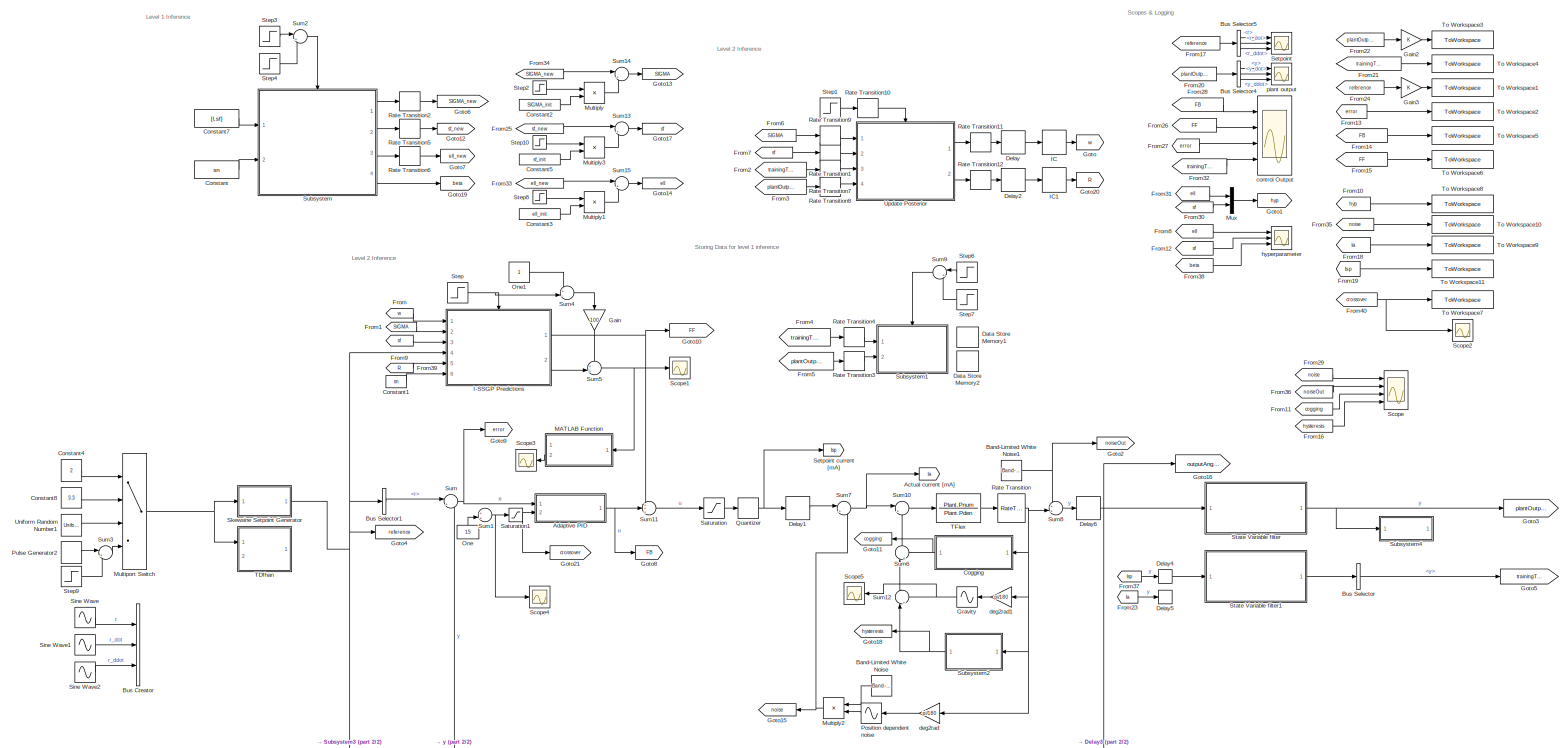
[diagram: root canvas - part 1/2, most of the canvas]
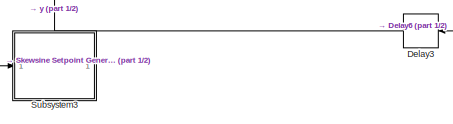
[diagram: root canvas - part 2/2, bottom center region]
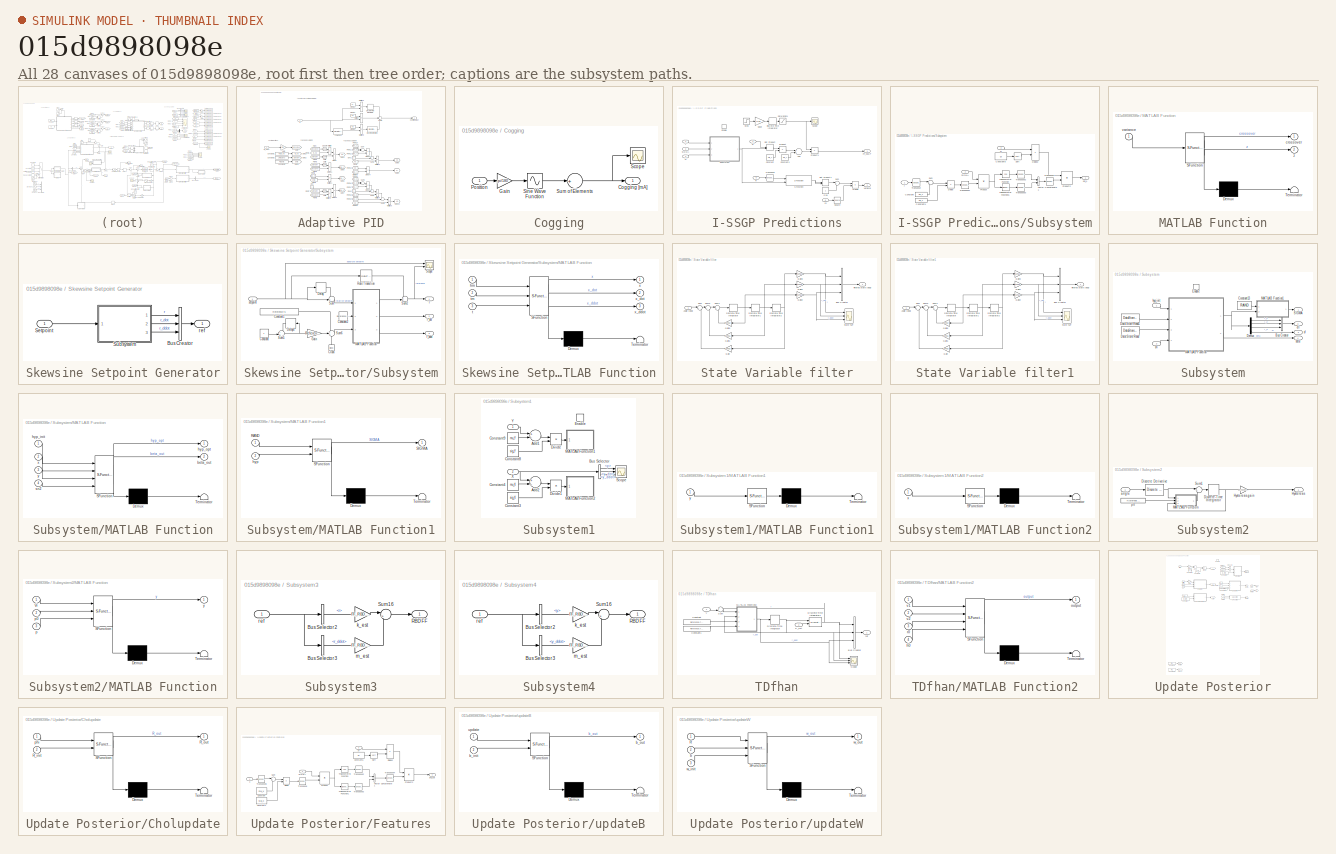
[diagram: thumbnail index - all 28 canvases of the model, root first then tree order]
MODEL slx_015d9898098e
KIND model
CONFIG AbsTol = auto
CONFIG EnableMultiTasking = off
CONFIG FixedStep = auto
CONFIG MaxStep = auto
CONFIG MinStep = auto
CONFIG RelTol = 1e-3
CONFIG SampleTimeConstraint = Unconstrained
CONFIG Solver = VariableStepAuto
CONFIG SolverName = VariableStepAuto
CONFIG StartTime = 0.0
CONFIG StopTime = t_end
BLOCK [Goto] Actual current [mA]
  GotoTag = Ia
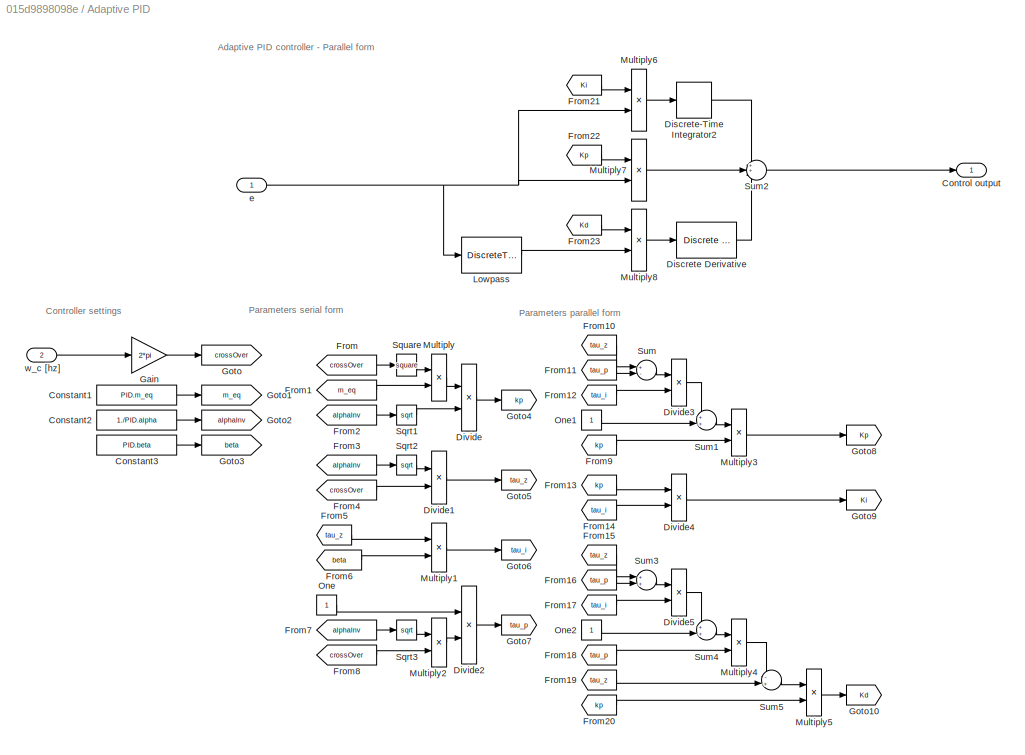
BLOCK [SubSystem] Adaptive PID
  Ports = [2, 1]
  RequestExecContextInheritance = off
BLOCK [Constant] Adaptive PID/Constant1
  Value = PID.m_eq
BLOCK [Constant] Adaptive PID/Constant2
  Value = 1./PID.alpha
BLOCK [Constant] Adaptive PID/Constant3
  Value = PID.beta
BLOCK [Outport] Adaptive PID/Control output
  IconDisplay = Port number
BLOCK [Reference] Adaptive PID/Discrete Derivative  REF=simulink/Discrete/Discrete Derivative
  Ports = [1, 1]
  SourceBlock = simulink/Discrete/Discrete Derivative
  SourceProductBaseCode = SL
  SourceProductName = Simulink
  SourceType = Discrete Derivative
BLOCK [DiscreteIntegrator] Adaptive PID/Discrete-Time Integrator2
  ICPrevOutput = DiscIntNeverNeededParam
  ICPrevScaledInput = DiscIntNeverNeededParam
  InitialConditionSetting = Auto
  Ports = [1, 1]
  SampleTime = -1
BLOCK [Product] Adaptive PID/Divide
  InputSameDT = off
  Inputs = */
  OutDataTypeStr = Inherit: Inherit via internal rule
  Ports = [2, 1]
  RndMeth = Floor
  SaturateOnIntegerOverflow = off
BLOCK [Product] Adaptive PID/Divide1
  InputSameDT = off
  Inputs = */
  OutDataTypeStr = Inherit: Inherit via internal rule
  Ports = [2, 1]
  RndMeth = Floor
  SaturateOnIntegerOverflow = off
BLOCK [Product] Adaptive PID/Divide2
  InputSameDT = off
  Inputs = */
  OutDataTypeStr = Inherit: Inherit via internal rule
  Ports = [2, 1]
  RndMeth = Floor
  SaturateOnIntegerOverflow = off
BLOCK [Product] Adaptive PID/Divide3
  InputSameDT = off
  Inputs = */
  OutDataTypeStr = Inherit: Inherit via internal rule
  Ports = [2, 1]
  RndMeth = Floor
  SaturateOnIntegerOverflow = off
BLOCK [Product] Adaptive PID/Divide4
  InputSameDT = off
  Inputs = */
  OutDataTypeStr = Inherit: Inherit via internal rule
  Ports = [2, 1]
  RndMeth = Floor
  SaturateOnIntegerOverflow = off
BLOCK [Product] Adaptive PID/Divide5
  InputSameDT = off
  Inputs = */
  OutDataTypeStr = Inherit: Inherit via internal rule
  Ports = [2, 1]
  RndMeth = Floor
  SaturateOnIntegerOverflow = off
BLOCK [From] Adaptive PID/From
  GotoTag = crossOver
BLOCK [From] Adaptive PID/From1
  GotoTag = m_eq
BLOCK [From] Adaptive PID/From10
  GotoTag = tau_z
BLOCK [From] Adaptive PID/From11
  GotoTag = tau_p
BLOCK [From] Adaptive PID/From12
  GotoTag = tau_i
BLOCK [From] Adaptive PID/From13
  GotoTag = kp
BLOCK [From] Adaptive PID/From14
  GotoTag = tau_i
BLOCK [From] Adaptive PID/From15
  GotoTag = tau_z
BLOCK [From] Adaptive PID/From16
  GotoTag = tau_p
BLOCK [From] Adaptive PID/From17
  GotoTag = tau_i
BLOCK [From] Adaptive PID/From18
  GotoTag = tau_p
BLOCK [From] Adaptive PID/From19
  GotoTag = tau_z
BLOCK [From] Adaptive PID/From2
  GotoTag = alphaInv
BLOCK [From] Adaptive PID/From20
  GotoTag = kp
BLOCK [From] Adaptive PID/From21
  GotoTag = Ki
BLOCK [From] Adaptive PID/From22
  GotoTag = Kp
BLOCK [From] Adaptive PID/From23
  GotoTag = Kd
BLOCK [From] Adaptive PID/From3
  GotoTag = alphaInv
BLOCK [From] Adaptive PID/From4
  GotoTag = crossOver
BLOCK [From] Adaptive PID/From5
  GotoTag = tau_z
BLOCK [From] Adaptive PID/From6
  GotoTag = beta
BLOCK [From] Adaptive PID/From7
  GotoTag = alphaInv
BLOCK [From] Adaptive PID/From8
  GotoTag = crossOver
BLOCK [From] Adaptive PID/From9
  GotoTag = kp
BLOCK [Gain] Adaptive PID/Gain
  Gain = 2*pi
  OutDataTypeStr = Inherit: Inherit via internal rule
  ParamDataTypeStr = Inherit: Inherit via internal rule
  SaturateOnIntegerOverflow = off
BLOCK [Goto] Adaptive PID/Goto
  GotoTag = crossOver
BLOCK [Goto] Adaptive PID/Goto1
  GotoTag = m_eq
BLOCK [Goto] Adaptive PID/Goto10
  GotoTag = Kd
BLOCK [Goto] Adaptive PID/Goto2
  GotoTag = alphaInv
BLOCK [Goto] Adaptive PID/Goto3
  GotoTag = beta
BLOCK [Goto] Adaptive PID/Goto4
  GotoTag = kp
BLOCK [Goto] Adaptive PID/Goto5
  GotoTag = tau_z
BLOCK [Goto] Adaptive PID/Goto6
  GotoTag = tau_i
BLOCK [Goto] Adaptive PID/Goto7
  GotoTag = tau_p
BLOCK [Goto] Adaptive PID/Goto8
  GotoTag = Kp
BLOCK [Goto] Adaptive PID/Goto9
  GotoTag = Ki
BLOCK [DiscreteTransferFcn] Adaptive PID/Lowpass
  Denominator = PID.LPden
  InputPortMap = u0
  Numerator = PID.LPnum
  Ports = [1, 1]
  SampleTime = ts
BLOCK [Product] Adaptive PID/Multiply
  InputSameDT = off
  OutDataTypeStr = Inherit: Inherit via internal rule
  Ports = [2, 1]
  RndMeth = Floor
  SaturateOnIntegerOverflow = off
BLOCK [Product] Adaptive PID/Multiply1
  InputSameDT = off
  OutDataTypeStr = Inherit: Inherit via internal rule
  Ports = [2, 1]
  RndMeth = Floor
  SaturateOnIntegerOverflow = off
BLOCK [Product] Adaptive PID/Multiply2
  InputSameDT = off
  OutDataTypeStr = Inherit: Inherit via internal rule
  Ports = [2, 1]
  RndMeth = Floor
  SaturateOnIntegerOverflow = off
BLOCK [Product] Adaptive PID/Multiply3
  InputSameDT = off
  OutDataTypeStr = Inherit: Inherit via internal rule
  Ports = [2, 1]
  RndMeth = Floor
  SaturateOnIntegerOverflow = off
BLOCK [Product] Adaptive PID/Multiply4
  InputSameDT = off
  OutDataTypeStr = Inherit: Inherit via internal rule
  Ports = [2, 1]
  RndMeth = Floor
  SaturateOnIntegerOverflow = off
BLOCK [Product] Adaptive PID/Multiply5
  InputSameDT = off
  OutDataTypeStr = Inherit: Inherit via internal rule
  Ports = [2, 1]
  RndMeth = Floor
  SaturateOnIntegerOverflow = off
BLOCK [Product] Adaptive PID/Multiply6
  InputSameDT = off
  OutDataTypeStr = Inherit: Inherit via internal rule
  Ports = [2, 1]
  RndMeth = Floor
  SaturateOnIntegerOverflow = off
BLOCK [Product] Adaptive PID/Multiply7
  InputSameDT = off
  OutDataTypeStr = Inherit: Inherit via internal rule
  Ports = [2, 1]
  RndMeth = Floor
  SaturateOnIntegerOverflow = off
BLOCK [Product] Adaptive PID/Multiply8
  InputSameDT = off
  OutDataTypeStr = Inherit: Inherit via internal rule
  Ports = [2, 1]
  RndMeth = Floor
  SaturateOnIntegerOverflow = off
BLOCK [Constant] Adaptive PID/One
  OutDataTypeStr = Inherit: Inherit via back propagation
BLOCK [Constant] Adaptive PID/One1
  OutDataTypeStr = Inherit: Inherit via back propagation
BLOCK [Constant] Adaptive PID/One2
  OutDataTypeStr = Inherit: Inherit via back propagation
BLOCK [Sqrt] Adaptive PID/Sqrt1
BLOCK [Sqrt] Adaptive PID/Sqrt2
BLOCK [Sqrt] Adaptive PID/Sqrt3
BLOCK [Math] Adaptive PID/Square
  Operator = square
  Ports = [1, 1]
BLOCK [Sum] Adaptive PID/Sum
  IconShape = round
  InputSameDT = off
  Inputs = +-|
  OutDataTypeStr = Inherit: Inherit via internal rule
  Ports = [2, 1]
  SaturateOnIntegerOverflow = off
BLOCK [Sum] Adaptive PID/Sum1
  IconShape = round
  InputSameDT = off
  Inputs = ++|
  OutDataTypeStr = Inherit: Inherit via internal rule
  Ports = [2, 1]
  SaturateOnIntegerOverflow = off
BLOCK [Sum] Adaptive PID/Sum2
  IconShape = round
  InputSameDT = off
  Inputs = 3
  OutDataTypeStr = Inherit: Inherit via internal rule
  Ports = [3, 1]
  SaturateOnIntegerOverflow = off
BLOCK [Sum] Adaptive PID/Sum3
  IconShape = round
  InputSameDT = off
  Inputs = ++|
  OutDataTypeStr = Inherit: Inherit via internal rule
  Ports = [2, 1]
  SaturateOnIntegerOverflow = off
BLOCK [Sum] Adaptive PID/Sum4
  IconShape = round
  InputSameDT = off
  Inputs = ++|
  OutDataTypeStr = Inherit: Inherit via internal rule
  Ports = [2, 1]
  SaturateOnIntegerOverflow = off
BLOCK [Sum] Adaptive PID/Sum5
  IconShape = round
  InputSameDT = off
  Inputs = -+|
  OutDataTypeStr = Inherit: Inherit via internal rule
  Ports = [2, 1]
  SaturateOnIntegerOverflow = off
BLOCK [Inport] Adaptive PID/e
  IconDisplay = Port number
BLOCK [Inport] Adaptive PID/w_c [hz]
  IconDisplay = Port number
  Port = 2
BLOCK [Reference] Band-Limited White Noise  REF=simulink/Sources/Band-Limited
White Noise
  Ports = [0, 1]
  SourceBlock = simulink/Sources/Band-Limited\nWhite Noise
  SourceProductBaseCode = SL
  SourceProductName = Simulink
  SourceType = Band-Limited White Noise.
BLOCK [Reference] Band-Limited White Noise1  REF=simulink/Sources/Band-Limited
White Noise
  Ports = [0, 1]
  SourceBlock = simulink/Sources/Band-Limited\nWhite Noise
  SourceProductBaseCode = SL
  SourceProductName = Simulink
  SourceType = Band-Limited White Noise.
BLOCK [BusCreator] Bus Creator
  DisplayOption = bar
  InheritFromInputs = on
  Inputs = 3
  Ports = [3, 1]
BLOCK [BusSelector] Bus Selector
  OutputAsBus = off
  OutputSignals = y
  Ports = [1, 1]
BLOCK [BusSelector] Bus Selector1
  OutputAsBus = off
  OutputSignals = r
  Ports = [1, 1]
BLOCK [BusSelector] Bus Selector4
  OutputAsBus = off
  OutputSignals = y,y_dot,y_ddot
  Ports = [1, 3]
BLOCK [BusSelector] Bus Selector5
  OutputAsBus = off
  OutputSignals = r,r_dot,r_ddot
  Ports = [1, 3]
BLOCK [SubSystem] Cogging
  Ports = [1, 1]
  RequestExecContextInheritance = off
BLOCK [Outport] Cogging/Cogging [mA]
  IconDisplay = Port number
BLOCK [Gain] Cogging/Gain
  Gain = pi/180
  OutDataTypeStr = Inherit: Inherit via internal rule
  ParamDataTypeStr = Inherit: Inherit via internal rule
  SaturateOnIntegerOverflow = off
BLOCK [Inport] Cogging/Position
  IconDisplay = Port number
BLOCK [Scope] Cogging/Scope
  Floating = off
  NumInputPorts = 1
  Ports = [1]
  ScopeSpecificationString = Simulink.scopes.TimeScopeBlockCfg('CurrentConfiguration', extmgr.ConfigurationSet(extmgr.Configuration('Core','General UI',true),extmgr.Configuration('Core','Source UI',true),extmgr.Configuration('Sources','WiredSimulink',true,'DataLoggingVariableName','ScopeData2'),extmgr.Configuration('Visuals','Time Domain',true,'SerializedDisplays',{struct('MinYLimReal','-29.47547','MaxYLimReal','29.47547','YL...<+1399ch>
BLOCK [Sin] Cogging/Sine Wave Function
  Amplitude = Cogging.amplitude
  Frequency = Cogging.frequency*pi
  Phase = Cogging.phase
  Ports = [1, 1]
  SampleTime = 0
  TimeSource = Use external signal
BLOCK [Sum] Cogging/Sum of Elements
  InputSameDT = off
  Inputs = +
  OutDataTypeStr = Inherit: Inherit via internal rule
  Ports = [1, 1]
  SaturateOnIntegerOverflow = off
BLOCK [Constant] Constant
  SampleTime = ts_opti
  Value = sn
BLOCK [Constant] Constant1
  SampleTime = ts_opti
  Value = sn
BLOCK [Constant] Constant2
  SampleTime = ts_opti
  Value = SIGMA_init
BLOCK [Constant] Constant3
  SampleTime = ts_opti
  Value = ell_init
BLOCK [Constant] Constant4
  SampleTime = Reference.ts
  Value = 2
BLOCK [Constant] Constant5
  SampleTime = ts_opti
  Value = sf_init
BLOCK [Constant] Constant7
  SampleTime = ts_opti
  Value = [l,sf]
  VectorParams1D = off
BLOCK [Constant] Constant8
  SampleTime = Reference.ts
  Value = 3.3
BLOCK [DataStoreMemory] Data Store Memory1
  DataStoreName = Y
  InitialValue = zeros(bufferSize,1)
  LockScale = on
  OutDataTypeStr = double
  ReadBeforeWriteMsg = warning
  ShowAdditionalParam = off
  SignalType = real
  VectorParams1D = off
  WriteAfterReadMsg = warning
  WriteAfterWriteMsg = warning
BLOCK [DataStoreMemory] Data Store Memory2
  DataStoreName = X
  InitialValue = zeros(bufferSize,3)
  LockScale = on
  OutDataTypeStr = double
  ReadBeforeWriteMsg = warning
  ShowAdditionalParam = off
  SignalType = real
  VectorParams1D = off
  WriteAfterReadMsg = warning
  WriteAfterWriteMsg = warning
BLOCK [Delay] Delay
  DelayLength = 1
  InitialCondition = 0
  InputPortMap = u0
  Ports = [1, 1]
BLOCK [Delay] Delay1
  DelayLength = 1
  InitialCondition = 0
  InputPortMap = u0
  Ports = [1, 1]
BLOCK [Delay] Delay2
  DelayLength = 1
  InitialCondition = 0
  InputPortMap = u0
  Ports = [1, 1]
BLOCK [Delay] Delay3
  DelayLength = 1
  InitialCondition = 0
  InputPortMap = u0
  Ports = [1, 1]
BLOCK [Delay] Delay4
  InputPortMap = u0
  Ports = [1, 1]
BLOCK [Delay] Delay5
  DelayLength = 1
  InputPortMap = u0
  Ports = [1, 1]
BLOCK [Delay] Delay6
  DelayLength = 1
  InitialCondition = 0
  InputPortMap = u0
  Ports = [1, 1]
BLOCK [From] From
  GotoTag = w
BLOCK [From] From1
  GotoTag = SIGMA
BLOCK [From] From10
  GotoTag = hyp
BLOCK [From] From11
  GotoTag = cogging
BLOCK [From] From12
  GotoTag = sf
BLOCK [From] From13
  GotoTag = error
BLOCK [From] From14
  GotoTag = FB
BLOCK [From] From15
  GotoTag = FF
BLOCK [From] From16
  GotoTag = hysteresis
BLOCK [From] From17
  GotoTag = reference
BLOCK [From] From18
  GotoTag = Ia
BLOCK [From] From19
  GotoTag = Isp
BLOCK [From] From2
  GotoTag = trainingTarget
BLOCK [From] From20
  GotoTag = plantOutput
BLOCK [From] From21
  GotoTag = trainingTarget
BLOCK [From] From22
  GotoTag = plantOutput
BLOCK [From] From23
  GotoTag = Ia
BLOCK [From] From24
  GotoTag = reference
BLOCK [From] From25
  GotoTag = sf_new
BLOCK [From] From26
  GotoTag = FF
BLOCK [From] From27
  GotoTag = error
BLOCK [From] From28
  GotoTag = FB
BLOCK [From] From29
  GotoTag = noise
BLOCK [From] From3
  GotoTag = plantOutput
BLOCK [From] From30
  GotoTag = sf
BLOCK [From] From31
  GotoTag = ell
BLOCK [From] From32
  GotoTag = trainingTarget
BLOCK [From] From33
  GotoTag = ell_new
BLOCK [From] From34
  GotoTag = SIGMA_new
BLOCK [From] From35
  GotoTag = noise
BLOCK [From] From36
  GotoTag = noiseOut
BLOCK [From] From37
  GotoTag = Isp
BLOCK [From] From38
  GotoTag = beta
BLOCK [From] From39
  GotoTag = R
BLOCK [From] From4
  GotoTag = trainingTarget
BLOCK [From] From40
  GotoTag = crossover
BLOCK [From] From5
  GotoTag = plantOutput
BLOCK [From] From6
  GotoTag = SIGMA
BLOCK [From] From7
  GotoTag = sf
BLOCK [From] From8
  GotoTag = ell
BLOCK [From] From9
  GotoTag = sf
BLOCK [Gain] Gain
  Gain = 100
  OutDataTypeStr = Inherit: Inherit via internal rule
  ParamDataTypeStr = Inherit: Inherit via internal rule
  SaturateOnIntegerOverflow = off
BLOCK [Gain] Gain2
  OutDataTypeStr = Inherit: Inherit via internal rule
  ParamDataTypeStr = Inherit: Inherit via internal rule
  SaturateOnIntegerOverflow = off
BLOCK [Gain] Gain3
  OutDataTypeStr = Inherit: Inherit via internal rule
  ParamDataTypeStr = Inherit: Inherit via internal rule
  SaturateOnIntegerOverflow = off
BLOCK [Goto] Goto
  GotoTag = w
BLOCK [Goto] Goto1
  GotoTag = hyp
BLOCK [Goto] Goto10
  GotoTag = FF
BLOCK [Goto] Goto11
  GotoTag = cogging
BLOCK [Goto] Goto12
  GotoTag = sf_new
BLOCK [Goto] Goto13
  GotoTag = SIGMA
BLOCK [Goto] Goto14
  GotoTag = ell
BLOCK [Goto] Goto15
  GotoTag = noise
BLOCK [Goto] Goto16
  GotoTag = outputAngle
BLOCK [Goto] Goto17
  GotoTag = sf
BLOCK [Goto] Goto18
  GotoTag = hysteresis
BLOCK [Goto] Goto19
  GotoTag = beta
BLOCK [Goto] Goto2
  GotoTag = noiseOut
BLOCK [Goto] Goto20
  GotoTag = R
BLOCK [Goto] Goto21
  GotoTag = crossover
BLOCK [Goto] Goto3
  GotoTag = plantOutput
BLOCK [Goto] Goto4
  GotoTag = reference
BLOCK [Goto] Goto5
  GotoTag = trainingTarget
BLOCK [Goto] Goto6
  GotoTag = SIGMA_new
BLOCK [Goto] Goto7
  GotoTag = ell_new
BLOCK [Goto] Goto8
  GotoTag = FB
BLOCK [Goto] Goto9
  GotoTag = error
BLOCK [Sin] Gravity
  Amplitude = gravity.constant
  Phase = gravity.phase
  Ports = [1, 1]
  SampleTime = 0
  TimeSource = Use external signal
BLOCK [SubSystem] I-SSGP Predictions
  Ports = [6, 2, 1]
  RequestExecContextInheritance = off
BLOCK [Sum] I-SSGP Predictions/Add
  InputSameDT = off
  OutDataTypeStr = Inherit: Inherit via internal rule
  Ports = [2, 1]
  SaturateOnIntegerOverflow = off
BLOCK [Constant] I-SSGP Predictions/Constant
  SampleTime = ts
  Value = sig_Y
  VectorParams1D = off
BLOCK [Constant] I-SSGP Predictions/Constant1
  SampleTime = ts
  Value = mu_Y
  VectorParams1D = off
BLOCK [DiscreteIntegrator] I-SSGP Predictions/Discrete-Time Integrator
  ICPrevOutput = DiscIntNeverNeededParam
  ICPrevScaledInput = DiscIntNeverNeededParam
  InitialConditionSetting = Auto
  Ports = [1, 1]
  SampleTime = -1
BLOCK [DotProduct] I-SSGP Predictions/Dot Product
  InputSameDT = off
  OutDataTypeStr = Inherit: Inherit via internal rule
BLOCK [DotProduct] I-SSGP Predictions/Dot Product1
  InputSameDT = off
  OutDataTypeStr = Inherit: Inherit via internal rule
BLOCK [EnablePort] I-SSGP Predictions/Enable
  Ports = []
BLOCK [Outport] I-SSGP Predictions/FF_SSGP
  IconDisplay = Port number
  SampleTime = ts
BLOCK [Product] I-SSGP Predictions/Multiply
  InputSameDT = off
  OutDataTypeStr = Inherit: Inherit via internal rule
  Ports = [2, 1]
  RndMeth = Floor
  SaturateOnIntegerOverflow = off
BLOCK [Constant] I-SSGP Predictions/One
  OutDataTypeStr = Inherit: Inherit via back propagation
BLOCK [Product] I-SSGP Predictions/Product
  InputSameDT = off
  OutDataTypeStr = Inherit: Inherit via internal rule
  Ports = [2, 1]
  RndMeth = Floor
  SaturateOnIntegerOverflow = off
BLOCK [Product] I-SSGP Predictions/Product1
  InputSameDT = off
  OutDataTypeStr = Inherit: Inherit via internal rule
  Ports = [2, 1]
  RndMeth = Floor
  SaturateOnIntegerOverflow = off
BLOCK [Inport] I-SSGP Predictions/R
  IconDisplay = Port number
  Port = 5
BLOCK [S-Function] I-SSGP Predictions/S-Function
  EnableBusSupport = off
  FunctionName = solve_lowerTriangular_sfun
  Parameters = 2*D
  Ports = [2, 1]
  SFcnIsStateOwnerBlock = off
  SFunctionDeploymentMode = off
BLOCK [Inport] I-SSGP Predictions/SIGMA
  IconDisplay = Port number
  Port = 2
BLOCK [Saturate] I-SSGP Predictions/Saturation1
  InputPortMap = u0
  LowerLimit = 0
  Ports = [1, 1]
  UpperLimit = 1
BLOCK [Scope] I-SSGP Predictions/Scope
  Floating = off
  NumInputPorts = 1
  Ports = [1]
  ScopeSpecificationString = Simulink.scopes.TimeScopeBlockCfg('CurrentConfiguration', extmgr.ConfigurationSet(extmgr.Configuration('Core','General UI',true),extmgr.Configuration('Core','Source UI',true),extmgr.Configuration('Sources','WiredSimulink',true,'DataLoggingVariableName','ScopeData2'),extmgr.Configuration('Visuals','Time Domain',true,'SerializedDisplays',{struct('MinYLimReal','-0.06373','MaxYLimReal','1.03377','YLab...<+1745ch>
BLOCK [Math] I-SSGP Predictions/Square
  Operator = square
  Ports = [1, 1]
BLOCK [Step] I-SSGP Predictions/Step
  SampleTime = ts
  Time = t_predict
BLOCK [SubSystem] I-SSGP Predictions/Subsystem
  Ports = [3, 1]
  RequestExecContextInheritance = off
BLOCK [Constant] I-SSGP Predictions/Subsystem/Constant
  SampleTime = -1
  Value = mu_X
  VectorParams1D = off
BLOCK [Constant] I-SSGP Predictions/Subsystem/Constant1
  SampleTime = -1
  Value = sig_X
  VectorParams1D = off
BLOCK [Constant] I-SSGP Predictions/Subsystem/Constant6
  SampleTime = -1
  Value = D
BLOCK [Product] I-SSGP Predictions/Subsystem/Divide
  InputSameDT = off
  Inputs = */
  OutDataTypeStr = Inherit: Inherit via internal rule
  Ports = [2, 1]
  RndMeth = Floor
  SaturateOnIntegerOverflow = off
BLOCK [Product] I-SSGP Predictions/Subsystem/Divide2
  InputSameDT = off
  Inputs = */
  OutDataTypeStr = Inherit: Inherit via internal rule
  Ports = [2, 1]
  RndMeth = Floor
  SaturateOnIntegerOverflow = off
BLOCK [Product] I-SSGP Predictions/Subsystem/Product
  InputSameDT = off
  Multiplication = Matrix(*)
  OutDataTypeStr = Inherit: Inherit via internal rule
  Ports = [2, 1]
  RndMeth = Floor
  SaturateOnIntegerOverflow = off
BLOCK [Product] I-SSGP Predictions/Subsystem/Product2
  InputSameDT = off
  OutDataTypeStr = Inherit: Inherit via internal rule
  Ports = [2, 1]
  RndMeth = Floor
  SaturateOnIntegerOverflow = off
BLOCK [Inport] I-SSGP Predictions/Subsystem/SIGMA
  IconDisplay = Port number
  Port = 2
BLOCK [Sqrt] I-SSGP Predictions/Subsystem/Sqrt
BLOCK [Sum] I-SSGP Predictions/Subsystem/Sum
  IconShape = round
  InputSameDT = off
  Inputs = |+-
  OutDataTypeStr = Inherit: Inherit via internal rule
  Ports = [2, 1]
  SaturateOnIntegerOverflow = off
BLOCK [Math] I-SSGP Predictions/Subsystem/Transpose
  Operator = transpose
  Ports = [1, 1]
BLOCK [Math] I-SSGP Predictions/Subsystem/Transpose1
  Operator = transpose
  Ports = [1, 1]
BLOCK [Math] I-SSGP Predictions/Subsystem/Transpose2
  Operator = transpose
  Ports = [1, 1]
BLOCK [Math] I-SSGP Predictions/Subsystem/Transpose3
  Operator = transpose
  Ports = [1, 1]
BLOCK [Math] I-SSGP Predictions/Subsystem/Transpose4
  Operator = transpose
  Ports = [1, 1]
BLOCK [Trigonometry] I-SSGP Predictions/Subsystem/Trigonometric Function
  Operator = cos
  Ports = [1, 1]
BLOCK [Trigonometry] I-SSGP Predictions/Subsystem/Trigonometric Function1
  Ports = [1, 1]
BLOCK [Concatenate] I-SSGP Predictions/Subsystem/Vector Concatenate1
  Ports = [2, 1]
BLOCK [Outport] I-SSGP Predictions/Subsystem/phi_1
  IconDisplay = Port number
BLOCK [Inport] I-SSGP Predictions/Subsystem/r
  IconDisplay = Port number
BLOCK [Inport] I-SSGP Predictions/Subsystem/sf
  IconDisplay = Port number
  Port = 3
BLOCK [Sum] I-SSGP Predictions/Sum
  IconShape = round
  InputSameDT = off
  Inputs = |++
  OutDataTypeStr = Inherit: Inherit via internal rule
  Ports = [2, 1]
  SaturateOnIntegerOverflow = off
BLOCK [Math] I-SSGP Predictions/Transpose
  Operator = transpose
  Ports = [1, 1]
BLOCK [Outport] I-SSGP Predictions/Variance
  IconDisplay = Port number
  Port = 2
  SampleTime = ts
BLOCK [Inport] I-SSGP Predictions/r
  IconDisplay = Port number
  Port = 4
BLOCK [Inport] I-SSGP Predictions/sf
  IconDisplay = Port number
  Port = 3
BLOCK [Gain] I-SSGP Predictions/slope
  Gain = 1/10
  OutDataTypeStr = Inherit: Inherit via internal rule
  ParamDataTypeStr = Inherit: Inherit via internal rule
  SaturateOnIntegerOverflow = off
BLOCK [Inport] I-SSGP Predictions/sn
  IconDisplay = Port number
  Port = 6
BLOCK [Inport] I-SSGP Predictions/w
  IconDisplay = Port number
BLOCK [InitialCondition] IC
  Value = w_init
BLOCK [InitialCondition] IC1
  Value = R_init
BLOCK [SubSystem] MATLAB Function
  ErrorFcn = Stateflow.Translate.translate
  PermitHierarchicalResolution = ExplicitOnly
  Ports = [1, 2]
  RequestExecContextInheritance = off
  SFBlockType = MATLAB Function
  TreatAsAtomicUnit = on
BLOCK [Demux] MATLAB Function/ Demux 
  Outputs = 1
  Ports = [1, 1]
BLOCK [S-Function] MATLAB Function/ SFunction 
  EnableBusSupport = on
  FunctionName = sf_sfun
  Parameters = sn
  PortCounts = [1 3]
  Ports = [1, 3]
  SFcnIsStateOwnerBlock = off
  SFunctionDeploymentMode = off
  Tag = Stateflow S-Function TFlex_ISSGP 9
BLOCK [Terminator] MATLAB Function/ Terminator 
BLOCK [Outport] MATLAB Function/crossover
  IconDisplay = Port number
BLOCK [Inport] MATLAB Function/variance
  IconDisplay = Port number
BLOCK [Outport] MATLAB Function/z
  IconDisplay = Port number
  Port = 2
BLOCK [Product] Multiply
  InputSameDT = off
  OutDataTypeStr = Inherit: Inherit via internal rule
  Ports = [2, 1]
  RndMeth = Floor
  SaturateOnIntegerOverflow = off
BLOCK [Product] Multiply1
  InputSameDT = off
  OutDataTypeStr = Inherit: Inherit via internal rule
  Ports = [2, 1]
  RndMeth = Floor
  SaturateOnIntegerOverflow = off
BLOCK [Product] Multiply2
  InputSameDT = off
  OutDataTypeStr = Inherit: Inherit via internal rule
  Ports = [2, 1]
  RndMeth = Floor
  SaturateOnIntegerOverflow = off
BLOCK [Product] Multiply3
  InputSameDT = off
  OutDataTypeStr = Inherit: Inherit via internal rule
  Ports = [2, 1]
  RndMeth = Floor
  SaturateOnIntegerOverflow = off
BLOCK [MultiPortSwitch] Multiport Switch
  InputSameDT = off
  Ports = [4, 1]
  SaturateOnIntegerOverflow = off
BLOCK [Mux] Mux
  DisplayOption = bar
  Inputs = 2
  Ports = [2, 1]
BLOCK [Constant] One
  OutDataTypeStr = Inherit: Inherit via back propagation
  Value = 15
BLOCK [Constant] One1
  OutDataTypeStr = Inherit: Inherit via back propagation
BLOCK [Sin] Position dependent noise
  Bias = 2
  Frequency = 27.7
  Ports = [1, 1]
  SampleTime = 0
  TimeSource = Use external signal
BLOCK [DiscretePulseGenerator] Pulse Generator2
  Amplitude = 2*10
  Ports = [0, 1]
  SampleTime = Reference.ts
BLOCK [Quantizer] Quantizer
  QuantizationInterval = 1
BLOCK [RateTransition] Rate Transition
  OutPortSampleTime = ts
BLOCK [RateTransition] Rate Transition1
  OutPortSampleTime = ts_learn
BLOCK [RateTransition] Rate Transition10
  OutPortSampleTime = ts_learn
BLOCK [RateTransition] Rate Transition11
BLOCK [RateTransition] Rate Transition12
BLOCK [RateTransition] Rate Transition2
  OutPortSampleTime = ts
BLOCK [RateTransition] Rate Transition3
  OutPortSampleTime = ts*bufferResamp
BLOCK [RateTransition] Rate Transition4
  OutPortSampleTime = ts*bufferResamp
BLOCK [RateTransition] Rate Transition5
  OutPortSampleTime = ts
BLOCK [RateTransition] Rate Transition6
  OutPortSampleTime = ts
BLOCK [RateTransition] Rate Transition7
  OutPortSampleTime = ts_learn
BLOCK [RateTransition] Rate Transition8
  OutPortSampleTime = ts_learn
BLOCK [RateTransition] Rate Transition9
  OutPortSampleTime = ts_learn
BLOCK [Saturate] Saturation
  InputPortMap = u0
  LowerLimit = -I_limit
  Ports = [1, 1]
  UpperLimit = I_limit
BLOCK [Saturate] Saturation1
  InputPortMap = u0
  LowerLimit = 0
  Ports = [1, 1]
  UpperLimit = 20
BLOCK [Scope] Scope
  Floating = off
  NumInputPorts = 4
  Ports = [4]
  ScopeSpecificationString = Simulink.scopes.TimeScopeBlockCfg('CurrentConfiguration', extmgr.ConfigurationSet(extmgr.Configuration('Core','General UI',true),extmgr.Configuration('Core','Source UI',true),extmgr.Configuration('Sources','WiredSimulink',true,'DataLoggingVariableName','Disturbances','DataLogging',true,'DataLoggingSaveFormat','StructureWithTime'),extmgr.Configuration('Visuals','Time Domain',true,'SerializedDisplay...<+3860ch>
BLOCK [Scope] Scope1
  Floating = off
  NumInputPorts = 1
  Ports = [1]
  ScopeSpecificationString = Simulink.scopes.TimeScopeBlockCfg('CurrentConfiguration', extmgr.ConfigurationSet(extmgr.Configuration('Core','General UI',true),extmgr.Configuration('Core','Source UI',true),extmgr.Configuration('Sources','WiredSimulink',true,'DataLoggingVariableName','ScopeData1'),extmgr.Configuration('Visuals','Time Domain',true,'SerializedDisplays',{struct('MinYLimReal','-2700.48987','MaxYLimReal','24514.45584...<+1463ch>
BLOCK [Scope] Scope2
  Floating = off
  NumInputPorts = 1
  Ports = [1]
  ScopeSpecificationString = Simulink.scopes.TimeScopeBlockCfg('CurrentConfiguration', extmgr.ConfigurationSet(extmgr.Configuration('Core','General UI',true),extmgr.Configuration('Core','Source UI',true),extmgr.Configuration('Sources','WiredSimulink',true,'DataLoggingVariableName','ScopeData2'),extmgr.Configuration('Visuals','Time Domain',true,'SerializedDisplays',{struct('MinYLimReal','2.73348','MaxYLimReal','25.39866','YLab...<+1450ch>
BLOCK [Scope] Scope3
  Floating = off
  NumInputPorts = 1
  Ports = [1]
  ScopeSpecificationString = Simulink.scopes.TimeScopeBlockCfg('CurrentConfiguration', extmgr.ConfigurationSet(extmgr.Configuration('Core','General UI',true),extmgr.Configuration('Core','Source UI',true),extmgr.Configuration('Sources','WiredSimulink',true,'DataLoggingVariableName','ScopeData1'),extmgr.Configuration('Visuals','Time Domain',true,'SerializedDisplays',{struct('MinYLimReal','-0.1193','MaxYLimReal','1.12437','YLabe...<+1447ch>
BLOCK [Scope] Scope4
  Floating = off
  NumInputPorts = 1
  Ports = [1]
  ScopeSpecificationString = Simulink.scopes.TimeScopeBlockCfg('CurrentConfiguration', extmgr.ConfigurationSet(extmgr.Configuration('Core','General UI',true),extmgr.Configuration('Core','Source UI',true),extmgr.Configuration('Sources','WiredSimulink',true,'DataLoggingVariableName','CrossOver','DataLogging',true,'DataLoggingSaveFormat','StructureWithTime'),extmgr.Configuration('Visuals','Time Domain',true,'SerializedDisplays',...<+1485ch>
BLOCK [Scope] Scope5
  Floating = off
  NumInputPorts = 1
  Ports = [1]
  ScopeSpecificationString = Simulink.scopes.TimeScopeBlockCfg('CurrentConfiguration', extmgr.ConfigurationSet(extmgr.Configuration('Core','General UI',true),extmgr.Configuration('Core','Source UI',true),extmgr.Configuration('Sources','WiredSimulink',true,'DataLoggingVariableName','ScopeData1'),extmgr.Configuration('Visuals','Time Domain',true,'SerializedDisplays',{struct('MinYLimReal','-87.55408','MaxYLimReal','14.32174','YL...<+1409ch>
BLOCK [Scope] Setpoint
  Floating = off
  NumInputPorts = 3
  Ports = [3]
  ScopeSpecificationString = Simulink.scopes.TimeScopeBlockCfg('CurrentConfiguration', extmgr.ConfigurationSet(extmgr.Configuration('Core','General UI',true),extmgr.Configuration('Core','Source UI',true),extmgr.Configuration('Sources','WiredSimulink',true,'DataLoggingVariableName','ScopeData3','DataLoggingSaveFormat','StructureWithTime'),extmgr.Configuration('Visuals','Time Domain',true,'SerializedDisplays',{struct('MinYLimRe...<+2753ch>
BLOCK [Goto] Setpoint current [mA]
  GotoTag = Isp
BLOCK [Sin] Sine Wave
  Amplitude = 10
  Frequency = 1*2*pi
  Ports = [0, 1]
  SampleTime = 1/1000
BLOCK [Sin] Sine Wave1
  Amplitude = 10*1*2*pi
  Frequency = 1*2*pi
  Phase = pi/2
  Ports = [0, 1]
  SampleTime = 1/1000
BLOCK [Sin] Sine Wave2
  Amplitude = -10*(1*2*pi)^2
  Frequency = 1*2*pi
  Ports = [0, 1]
  SampleTime = 1/1000
BLOCK [SubSystem] Skewsine Setpoint Generator
  Ports = [1, 1]
  RequestExecContextInheritance = off
BLOCK [BusCreator] Skewsine Setpoint Generator/Bus Creator
  DisplayOption = bar
  InheritFromInputs = on
  Inputs = 3
  Ports = [3, 1]
BLOCK [Inport] Skewsine Setpoint Generator/Setpoint
  IconDisplay = Port number
BLOCK [SubSystem] Skewsine Setpoint Generator/Subsystem
  Ports = [1, 3]
  RequestExecContextInheritance = off
BLOCK [Clock] Skewsine Setpoint Generator/Subsystem/Clock
  Decimation = 100
BLOCK [Constant] Skewsine Setpoint Generator/Subsystem/Constant
  SampleTime = Reference.ts
BLOCK [Constant] Skewsine Setpoint Generator/Subsystem/Constant1
  SampleTime = Reference.ts
  Value = Reference.ts
BLOCK [Constant] Skewsine Setpoint Generator/Subsystem/Constant2
  SampleTime = Reference.ts
  Value = Reference.skewSine.tm
BLOCK [Delay] Skewsine Setpoint Generator/Subsystem/Delay
  DelayLength = 1
  InitialCondition = 0
  InputPortMap = u0
  Ports = [1, 1]
  SampleTime = Reference.ts
BLOCK [Delay] Skewsine Setpoint Generator/Subsystem/Delay4
  DelayLength = 1
  InitialCondition = 0
  InputPortMap = u0
  Ports = [1, 1]
  SampleTime = Reference.ts
BLOCK [Gain] Skewsine Setpoint Generator/Subsystem/Gain
  Gain = Reference.ts
  OutDataTypeStr = Inherit: Inherit via internal rule
  ParamDataTypeStr = Inherit: Inherit via internal rule
  SaturateOnIntegerOverflow = off
BLOCK [SubSystem] Skewsine Setpoint Generator/Subsystem/MATLAB Function
  ErrorFcn = Stateflow.Translate.translate
  PermitHierarchicalResolution = ExplicitOnly
  Ports = [3, 3]
  RequestExecContextInheritance = off
  SFBlockType = MATLAB Function
  TreatAsAtomicUnit = on
BLOCK [Demux] Skewsine Setpoint Generator/Subsystem/MATLAB Function/ Demux 
  Outputs = 1
  Ports = [1, 1]
BLOCK [S-Function] Skewsine Setpoint Generator/Subsystem/MATLAB Function/ SFunction 
  EnableBusSupport = on
  FunctionName = sf_sfun
  PortCounts = [3 4]
  Ports = [3, 4]
  SFcnIsStateOwnerBlock = off
  SFunctionDeploymentMode = off
  Tag = Stateflow S-Function TFlex_ISSGP 2
BLOCK [Terminator] Skewsine Setpoint Generator/Subsystem/MATLAB Function/ Terminator 
BLOCK [Inport] Skewsine Setpoint Generator/Subsystem/MATLAB Function/hm
  IconDisplay = Port number
BLOCK [Inport] Skewsine Setpoint Generator/Subsystem/MATLAB Function/t
  IconDisplay = Port number
  Port = 3
BLOCK [Inport] Skewsine Setpoint Generator/Subsystem/MATLAB Function/tm
  IconDisplay = Port number
  Port = 2
BLOCK [Outport] Skewsine Setpoint Generator/Subsystem/MATLAB Function/x
  IconDisplay = Port number
BLOCK [Outport] Skewsine Setpoint Generator/Subsystem/MATLAB Function/x_ddot
  IconDisplay = Port number
  Port = 3
BLOCK [Outport] Skewsine Setpoint Generator/Subsystem/MATLAB Function/x_dot
  IconDisplay = Port number
  Port = 2
BLOCK [RateTransition] Skewsine Setpoint Generator/Subsystem/Rate Transition
  OutPortSampleTime = ts
BLOCK [Scope] Skewsine Setpoint Generator/Subsystem/Scope
  Floating = off
  NumInputPorts = 2
  Ports = [2]
  ScopeSpecificationString = Simulink.scopes.TimeScopeBlockCfg('CurrentConfiguration', extmgr.ConfigurationSet(extmgr.Configuration('Core','General UI',true),extmgr.Configuration('Core','Source UI',true),extmgr.Configuration('Sources','WiredSimulink',true,'DataLoggingVariableName','ScopeData2'),extmgr.Configuration('Visuals','Time Domain',true,'SerializedDisplays',{struct('MinYLimReal','-28.49581','MaxYLimReal','28.63849','YL...<+1469ch>
BLOCK [Sum] Skewsine Setpoint Generator/Subsystem/Sum
  IconShape = round
  InputSameDT = off
  Inputs = -+|
  OutDataTypeStr = Inherit: Inherit via internal rule
  Ports = [2, 1]
  SaturateOnIntegerOverflow = off
BLOCK [Sum] Skewsine Setpoint Generator/Subsystem/Sum2
  IconShape = round
  InputSameDT = off
  Inputs = ++|
  OutDataTypeStr = Inherit: Inherit via internal rule
  Ports = [2, 1]
  SaturateOnIntegerOverflow = off
BLOCK [Sum] Skewsine Setpoint Generator/Subsystem/Sum5
  IconShape = round
  InputSameDT = off
  Inputs = ++|
  OutDataTypeStr = Inherit: Inherit via internal rule
  Ports = [2, 1]
  SaturateOnIntegerOverflow = off
BLOCK [Sum] Skewsine Setpoint Generator/Subsystem/Sum6
  IconShape = round
  InputSameDT = off
  Inputs = +-+
  OutDataTypeStr = Inherit: Inherit via internal rule
  Ports = [3, 1]
  SaturateOnIntegerOverflow = off
BLOCK [Outport] Skewsine Setpoint Generator/Subsystem/r
  IconDisplay = Port number
BLOCK [Outport] Skewsine Setpoint Generator/Subsystem/r_ddot
  IconDisplay = Port number
  Port = 3
BLOCK [Outport] Skewsine Setpoint Generator/Subsystem/r_dot
  IconDisplay = Port number
  Port = 2
BLOCK [Inport] Skewsine Setpoint Generator/Subsystem/setpoint
  IconDisplay = Port number
BLOCK [Outport] Skewsine Setpoint Generator/ref
  IconDisplay = Port number
BLOCK [SubSystem] State Variable filter
  Ports = [1, 1]
  RequestExecContextInheritance = off
BLOCK [Inport] State Variable filter/Angle [deg]
  IconDisplay = Port number
BLOCK [BusCreator] State Variable filter/Bus Creator
  DisplayOption = bar
  InheritFromInputs = on
  Inputs = 3
  Ports = [3, 1]
BLOCK [DiscreteIntegrator] State Variable filter/Discrete-Time Integrator
  ICPrevOutput = DiscIntNeverNeededParam
  ICPrevScaledInput = DiscIntNeverNeededParam
  InitialConditionSetting = Auto
  Ports = [1, 1]
  SampleTime = -1
BLOCK [DiscreteIntegrator] State Variable filter/Discrete-Time Integrator1
  ICPrevOutput = DiscIntNeverNeededParam
  ICPrevScaledInput = DiscIntNeverNeededParam
  InitialConditionSetting = Auto
  Ports = [1, 1]
  SampleTime = -1
BLOCK [DiscreteIntegrator] State Variable filter/Discrete-Time Integrator2
  ICPrevOutput = DiscIntNeverNeededParam
  ICPrevScaledInput = DiscIntNeverNeededParam
  InitialConditionSetting = Auto
  Ports = [1, 1]
  SampleTime = -1
BLOCK [Outport] State Variable filter/Filtered state [deg]
  IconDisplay = Port number
  SampleTime = ts
BLOCK [Gain] State Variable filter/Gain
  Gain = SVF.a0
  OutDataTypeStr = Inherit: Inherit via internal rule
  ParamDataTypeStr = Inherit: Inherit via internal rule
  SaturateOnIntegerOverflow = off
BLOCK [Gain] State Variable filter/Gain1
  Gain = SVF.a1
  OutDataTypeStr = Inherit: Inherit via internal rule
  ParamDataTypeStr = Inherit: Inherit via internal rule
  SaturateOnIntegerOverflow = off
BLOCK [Gain] State Variable filter/Gain2
  Gain = SVF.a0
  OutDataTypeStr = Inherit: Inherit via internal rule
  ParamDataTypeStr = Inherit: Inherit via internal rule
  SaturateOnIntegerOverflow = off
BLOCK [Gain] State Variable filter/Gain3
  Gain = SVF.a0
  OutDataTypeStr = Inherit: Inherit via internal rule
  ParamDataTypeStr = Inherit: Inherit via internal rule
  SaturateOnIntegerOverflow = off
BLOCK [Gain] State Variable filter/Gain4
  Gain = SVF.a0
  OutDataTypeStr = Inherit: Inherit via internal rule
  ParamDataTypeStr = Inherit: Inherit via internal rule
  SaturateOnIntegerOverflow = off
BLOCK [Gain] State Variable filter/Gain5
  Gain = SVF.a2
  OutDataTypeStr = Inherit: Inherit via internal rule
  ParamDataTypeStr = Inherit: Inherit via internal rule
  SaturateOnIntegerOverflow = off
BLOCK [Scope] State Variable filter/State SVF
  Floating = off
  NumInputPorts = 3
  Ports = [3]
  ScopeSpecificationString = Simulink.scopes.TimeScopeBlockCfg('CurrentConfiguration', extmgr.ConfigurationSet(extmgr.Configuration('Core','General UI',true),extmgr.Configuration('Core','Source UI',true),extmgr.Configuration('Sources','WiredSimulink',true,'DataLoggingVariableName','ScopeData2','DataLoggingSaveFormat','StructureWithTime'),extmgr.Configuration('Visuals','Time Domain',true,'SerializedDisplays',{struct('MinYLimRe...<+2766ch>
BLOCK [Sum] State Variable filter/Sum
  IconShape = round
  InputSameDT = off
  Inputs = |+-
  OutDataTypeStr = Inherit: Inherit via internal rule
  Ports = [2, 1]
  SaturateOnIntegerOverflow = off
BLOCK [Sum] State Variable filter/Sum1
  IconShape = round
  InputSameDT = off
  Inputs = |+-
  OutDataTypeStr = Inherit: Inherit via internal rule
  Ports = [2, 1]
  SaturateOnIntegerOverflow = off
BLOCK [Sum] State Variable filter/Sum5
  IconShape = round
  InputSameDT = off
  Inputs = |+-
  OutDataTypeStr = Inherit: Inherit via internal rule
  Ports = [2, 1]
  SaturateOnIntegerOverflow = off
BLOCK [SubSystem] State Variable filter1
  Ports = [1, 1]
  RequestExecContextInheritance = off
BLOCK [Inport] State Variable filter1/Angle [deg]
  IconDisplay = Port number
BLOCK [BusCreator] State Variable filter1/Bus Creator
  DisplayOption = bar
  InheritFromInputs = on
  Inputs = 3
  Ports = [3, 1]
BLOCK [DiscreteIntegrator] State Variable filter1/Discrete-Time Integrator
  ICPrevOutput = DiscIntNeverNeededParam
  ICPrevScaledInput = DiscIntNeverNeededParam
  InitialConditionSetting = Auto
  Ports = [1, 1]
  SampleTime = -1
BLOCK [DiscreteIntegrator] State Variable filter1/Discrete-Time Integrator1
  ICPrevOutput = DiscIntNeverNeededParam
  ICPrevScaledInput = DiscIntNeverNeededParam
  InitialConditionSetting = Auto
  Ports = [1, 1]
  SampleTime = -1
BLOCK [DiscreteIntegrator] State Variable filter1/Discrete-Time Integrator2
  ICPrevOutput = DiscIntNeverNeededParam
  ICPrevScaledInput = DiscIntNeverNeededParam
  InitialConditionSetting = Auto
  Ports = [1, 1]
  SampleTime = -1
BLOCK [Outport] State Variable filter1/Filtered state [deg]
  IconDisplay = Port number
  SampleTime = ts
BLOCK [Gain] State Variable filter1/Gain
  Gain = SVF.a0
  OutDataTypeStr = Inherit: Inherit via internal rule
  ParamDataTypeStr = Inherit: Inherit via internal rule
  SaturateOnIntegerOverflow = off
BLOCK [Gain] State Variable filter1/Gain1
  Gain = SVF.a1
  OutDataTypeStr = Inherit: Inherit via internal rule
  ParamDataTypeStr = Inherit: Inherit via internal rule
  SaturateOnIntegerOverflow = off
BLOCK [Gain] State Variable filter1/Gain2
  Gain = SVF.a0
  OutDataTypeStr = Inherit: Inherit via internal rule
  ParamDataTypeStr = Inherit: Inherit via internal rule
  SaturateOnIntegerOverflow = off
BLOCK [Gain] State Variable filter1/Gain3
  Gain = SVF.a0
  OutDataTypeStr = Inherit: Inherit via internal rule
  ParamDataTypeStr = Inherit: Inherit via internal rule
  SaturateOnIntegerOverflow = off
BLOCK [Gain] State Variable filter1/Gain4
  Gain = SVF.a0
  OutDataTypeStr = Inherit: Inherit via internal rule
  ParamDataTypeStr = Inherit: Inherit via internal rule
  SaturateOnIntegerOverflow = off
BLOCK [Gain] State Variable filter1/Gain5
  Gain = SVF.a2
  OutDataTypeStr = Inherit: Inherit via internal rule
  ParamDataTypeStr = Inherit: Inherit via internal rule
  SaturateOnIntegerOverflow = off
BLOCK [Scope] State Variable filter1/State SVF
  Floating = off
  NumInputPorts = 3
  Ports = [3]
  ScopeSpecificationString = Simulink.scopes.TimeScopeBlockCfg('CurrentConfiguration', extmgr.ConfigurationSet(extmgr.Configuration('Core','General UI',true),extmgr.Configuration('Core','Source UI',true),extmgr.Configuration('Sources','WiredSimulink',true,'DataLoggingVariableName','ScopeData2','DataLoggingSaveFormat','StructureWithTime'),extmgr.Configuration('Visuals','Time Domain',true,'SerializedDisplays',{struct('MinYLimRe...<+2766ch>
BLOCK [Sum] State Variable filter1/Sum
  IconShape = round
  InputSameDT = off
  Inputs = |+-
  OutDataTypeStr = Inherit: Inherit via internal rule
  Ports = [2, 1]
  SaturateOnIntegerOverflow = off
BLOCK [Sum] State Variable filter1/Sum1
  IconShape = round
  InputSameDT = off
  Inputs = |+-
  OutDataTypeStr = Inherit: Inherit via internal rule
  Ports = [2, 1]
  SaturateOnIntegerOverflow = off
BLOCK [Sum] State Variable filter1/Sum5
  IconShape = round
  InputSameDT = off
  Inputs = |+-
  OutDataTypeStr = Inherit: Inherit via internal rule
  Ports = [2, 1]
  SaturateOnIntegerOverflow = off
BLOCK [Step] Step
  SampleTime = ts
  Time = t_predict
BLOCK [Step] Step1
  SampleTime = ts
  Time = t_learn
BLOCK [Step] Step10
  After = 0
  Before = 1
  SampleTime = ts_opti
  Time = t_hypUpdate(1)+ts
BLOCK [Step] Step2
  After = 0
  Before = 1
  SampleTime = ts_opti
  Time = t_hypUpdate(1)+ts
BLOCK [Step] Step3
  After = -1
  SampleTime = ts_opti
  Time = t_hypUpdate(2)
BLOCK [Step] Step4
  SampleTime = ts_opti
  Time = t_hypUpdate(1)
BLOCK [Step] Step6
  After = -1
  SampleTime = ts_opti
  Time = t_hypUpdate(2)
BLOCK [Step] Step7
  SampleTime = ts_opti
  Time = t_hypUpdate(1)-Z*ts
BLOCK [Step] Step8
  After = 0
  Before = 1
  SampleTime = ts_opti
  Time = t_hypUpdate(1)+ts
BLOCK [Step] Step9
  After = -10
  SampleTime = Reference.ts
  Time = 0
BLOCK [SubSystem] Subsystem
  Ports = [2, 4, 1]
  RequestExecContextInheritance = off
BLOCK [BusCreator] Subsystem/Bus Creator
  DisplayOption = bar
  InheritFromInputs = on
  Inputs = 3
  Ports = [3, 1]
BLOCK [Constant] Subsystem/Constant13
  SampleTime = ts_opti
  Value = RAND
  VectorParams1D = off
BLOCK [DataStoreRead] Subsystem/Data Store Read
  DataStoreElements = Y(:,:)
  DataStoreName = Y
  Ports = [0, 1]
  SampleTime = ts_opti
BLOCK [DataStoreRead] Subsystem/Data Store Read1
  DataStoreElements = X(:,:)
  DataStoreName = X
  Ports = [0, 1]
  SampleTime = ts_opti
BLOCK [Demux] Subsystem/Demux
  DisplayOption = bar
  Ports = [1, 4]
BLOCK [EnablePort] Subsystem/Enable
  Ports = []
BLOCK [SubSystem] Subsystem/MATLAB Function
  ErrorFcn = Stateflow.Translate.translate
  PermitHierarchicalResolution = ExplicitOnly
  Ports = [4, 2]
  RequestExecContextInheritance = off
  SFBlockType = MATLAB Function
  TreatAsAtomicUnit = on
BLOCK [Demux] Subsystem/MATLAB Function/ Demux 
  Outputs = 1
  Ports = [1, 1]
BLOCK [S-Function] Subsystem/MATLAB Function/ SFunction 
  EnableBusSupport = on
  FunctionName = sf_sfun
  Parameters = D_opti,RAND_opti,Z,beta_init,beta_min,beta_reduc,n
  PortCounts = [4 3]
  Ports = [4, 3]
  SFcnIsStateOwnerBlock = off
  SFunctionDeploymentMode = off
  Tag = Stateflow S-Function TFlex_ISSGP 14
BLOCK [Terminator] Subsystem/MATLAB Function/ Terminator 
BLOCK [Outport] Subsystem/MATLAB Function/beta_out
  IconDisplay = Port number
  Port = 2
BLOCK [Inport] Subsystem/MATLAB Function/hyp_init
  IconDisplay = Port number
BLOCK [Outport] Subsystem/MATLAB Function/hyp_opt
  IconDisplay = Port number
BLOCK [Inport] Subsystem/MATLAB Function/sn2
  IconDisplay = Port number
  Port = 4
BLOCK [Inport] Subsystem/MATLAB Function/x
  IconDisplay = Port number
  Port = 2
BLOCK [Inport] Subsystem/MATLAB Function/y
  IconDisplay = Port number
  Port = 3
BLOCK [SubSystem] Subsystem/MATLAB Function1
  ErrorFcn = Stateflow.Translate.translate
  PermitHierarchicalResolution = ExplicitOnly
  Ports = [2, 1]
  RequestExecContextInheritance = off
  SFBlockType = MATLAB Function
  TreatAsAtomicUnit = on
BLOCK [Demux] Subsystem/MATLAB Function1/ Demux 
  Outputs = 1
  Ports = [1, 1]
BLOCK [S-Function] Subsystem/MATLAB Function1/ SFunction 
  EnableBusSupport = on
  FunctionName = sf_sfun
  PortCounts = [2 2]
  Ports = [2, 2]
  SFcnIsStateOwnerBlock = off
  SFunctionDeploymentMode = off
  Tag = Stateflow S-Function TFlex_ISSGP 3
BLOCK [Terminator] Subsystem/MATLAB Function1/ Terminator 
BLOCK [Inport] Subsystem/MATLAB Function1/RAND
  IconDisplay = Port number
BLOCK [Outport] Subsystem/MATLAB Function1/SIGMA
  IconDisplay = Port number
BLOCK [Inport] Subsystem/MATLAB Function1/hyp
  IconDisplay = Port number
  Port = 2
BLOCK [Outport] Subsystem/SIGMA
  IconDisplay = Port number
BLOCK [Outport] Subsystem/beta
  IconDisplay = Port number
  Port = 4
BLOCK [Outport] Subsystem/ell
  IconDisplay = Port number
  Port = 3
BLOCK [Inport] Subsystem/hyp_init
  IconDisplay = Port number
  PortDimensions = [1,n+1]
BLOCK [Outport] Subsystem/sf
  IconDisplay = Port number
  Port = 2
BLOCK [Inport] Subsystem/sn
  IconDisplay = Port number
  Port = 2
BLOCK [SubSystem] Subsystem1
  Ports = [2, 0, 1]
  RequestExecContextInheritance = off
BLOCK [Sum] Subsystem1/Add1
  InputSameDT = off
  Inputs = +-
  OutDataTypeStr = Inherit: Inherit via internal rule
  Ports = [2, 1]
  SaturateOnIntegerOverflow = off
BLOCK [Sum] Subsystem1/Add2
  InputSameDT = off
  Inputs = +-
  OutDataTypeStr = Inherit: Inherit via internal rule
  Ports = [2, 1]
  SaturateOnIntegerOverflow = off
BLOCK [BusSelector] Subsystem1/Bus Selector
  OutputAsBus = off
  OutputSignals = y,y_dot,y_ddot
  Ports = [1, 3]
BLOCK [Constant] Subsystem1/Constant3
  SampleTime = ts_opti
  Value = sig_X
  VectorParams1D = off
BLOCK [Constant] Subsystem1/Constant4
  SampleTime = ts_opti
  Value = mu_X
  VectorParams1D = off
BLOCK [Constant] Subsystem1/Constant8
  SampleTime = ts_opti
  Value = sig_Y
  VectorParams1D = off
BLOCK [Constant] Subsystem1/Constant9
  SampleTime = ts_opti
  Value = mu_Y
  VectorParams1D = off
BLOCK [Product] Subsystem1/Divide
  InputSameDT = off
  Inputs = */
  OutDataTypeStr = Inherit: Inherit via internal rule
  Ports = [2, 1]
  RndMeth = Floor
  SaturateOnIntegerOverflow = off
BLOCK [Product] Subsystem1/Divide1
  InputSameDT = off
  Inputs = */
  OutDataTypeStr = Inherit: Inherit via internal rule
  Ports = [2, 1]
  RndMeth = Floor
  SaturateOnIntegerOverflow = off
BLOCK [EnablePort] Subsystem1/Enable
  Ports = []
BLOCK [SubSystem] Subsystem1/MATLAB Function1
  ErrorFcn = Stateflow.Translate.translate
  PermitHierarchicalResolution = ExplicitOnly
  Ports = [1]
  RequestExecContextInheritance = off
  SFBlockType = MATLAB Function
  TreatAsAtomicUnit = on
BLOCK [Demux] Subsystem1/MATLAB Function1/ Demux 
  Outputs = 1
  Ports = [1, 1]
BLOCK [S-Function] Subsystem1/MATLAB Function1/ SFunction 
  EnableBusSupport = on
  FunctionName = sf_sfun
  PortCounts = [1 1]
  Ports = [1, 1]
  SFcnIsStateOwnerBlock = off
  SFunctionDeploymentMode = off
  Tag = Stateflow S-Function TFlex_ISSGP 15
BLOCK [Terminator] Subsystem1/MATLAB Function1/ Terminator 
BLOCK [Inport] Subsystem1/MATLAB Function1/y
  IconDisplay = Port number
BLOCK [SubSystem] Subsystem1/MATLAB Function2
  ErrorFcn = Stateflow.Translate.translate
  PermitHierarchicalResolution = ExplicitOnly
  Ports = [1]
  RequestExecContextInheritance = off
  SFBlockType = MATLAB Function
  TreatAsAtomicUnit = on
BLOCK [Demux] Subsystem1/MATLAB Function2/ Demux 
  Outputs = 1
  Ports = [1, 1]
BLOCK [S-Function] Subsystem1/MATLAB Function2/ SFunction 
  EnableBusSupport = on
  FunctionName = sf_sfun
  PortCounts = [1 1]
  Ports = [1, 1]
  SFcnIsStateOwnerBlock = off
  SFunctionDeploymentMode = off
  Tag = Stateflow S-Function TFlex_ISSGP 1
BLOCK [Terminator] Subsystem1/MATLAB Function2/ Terminator 
BLOCK [Inport] Subsystem1/MATLAB Function2/x
  IconDisplay = Port number
BLOCK [Scope] Subsystem1/Scope
  Floating = off
  NumInputPorts = 3
  Ports = [3]
  ScopeSpecificationString = Simulink.scopes.TimeScopeBlockCfg('CurrentConfiguration', extmgr.ConfigurationSet(extmgr.Configuration('Core','General UI',true),extmgr.Configuration('Core','Source UI',true),extmgr.Configuration('Sources','WiredSimulink',true,'DataLoggingVariableName','ScopeData2'),extmgr.Configuration('Visuals','Time Domain',true,'SerializedDisplays',{struct('MinYLimReal','-9.75135','MaxYLimReal','11.12516','YLa...<+2779ch>
BLOCK [Inport] Subsystem1/X
  IconDisplay = Port number
  Port = 2
BLOCK [Inport] Subsystem1/Y
  IconDisplay = Port number
BLOCK [SubSystem] Subsystem2
  Ports = [1, 1]
  RequestExecContextInheritance = off
BLOCK [Reference] Subsystem2/Discrete Derivative  REF=simulink/Discrete/Discrete Derivative
  Ports = [1, 1]
  SourceBlock = simulink/Discrete/Discrete Derivative
  SourceProductBaseCode = SL
  SourceProductName = Simulink
  SourceType = Discrete Derivative
BLOCK [DiscreteIntegrator] Subsystem2/Discrete-Time Integrator
  ICPrevOutput = DiscIntNeverNeededParam
  ICPrevScaledInput = DiscIntNeverNeededParam
  InitialConditionSetting = Auto
  Ports = [1, 1]
  SampleTime = -1
BLOCK [Outport] Subsystem2/Hysteresis
  IconDisplay = Port number
BLOCK [Gain] Subsystem2/Hysteresis.gain
  Gain = Hysteresis.gain
  OutDataTypeStr = Inherit: Inherit via internal rule
  ParamDataTypeStr = Inherit: Inherit via internal rule
  SaturateOnIntegerOverflow = off
BLOCK [SubSystem] Subsystem2/MATLAB Function
  ErrorFcn = Stateflow.Translate.translate
  PermitHierarchicalResolution = ExplicitOnly
  Ports = [3, 1]
  RequestExecContextInheritance = off
  SFBlockType = MATLAB Function
  TreatAsAtomicUnit = on
BLOCK [Demux] Subsystem2/MATLAB Function/ Demux 
  Outputs = 1
  Ports = [1, 1]
BLOCK [S-Function] Subsystem2/MATLAB Function/ SFunction 
  EnableBusSupport = on
  FunctionName = sf_sfun
  PortCounts = [3 2]
  Ports = [3, 2]
  SFcnIsStateOwnerBlock = off
  SFunctionDeploymentMode = off
  Tag = Stateflow S-Function TFlex_ISSGP 5
BLOCK [Terminator] Subsystem2/MATLAB Function/ Terminator 
BLOCK [Inport] Subsystem2/MATLAB Function/Vr
  IconDisplay = Port number
BLOCK [Inport] Subsystem2/MATLAB Function/p
  IconDisplay = Port number
  Port = 3
BLOCK [Inport] Subsystem2/MATLAB Function/p0
  IconDisplay = Port number
  Port = 2
BLOCK [Outport] Subsystem2/MATLAB Function/y
  IconDisplay = Port number
BLOCK [Sum] Subsystem2/Sum1
  IconShape = round
  InputSameDT = off
  Inputs = |+-
  OutDataTypeStr = Inherit: Inherit via internal rule
  Ports = [2, 1]
  SaturateOnIntegerOverflow = off
BLOCK [Inport] Subsystem2/angle
  IconDisplay = Port number
BLOCK [Constant] Subsystem2/p0
  Value = Hysteresis.p0
BLOCK [SubSystem] Subsystem3
  Ports = [1, 1]
  RequestExecContextInheritance = off
BLOCK [BusSelector] Subsystem3/Bus Selector2
  OutputAsBus = off
  OutputSignals = r
  Ports = [1, 1]
BLOCK [BusSelector] Subsystem3/Bus Selector3
  OutputAsBus = off
  OutputSignals = r_ddot
  Ports = [1, 1]
BLOCK [Outport] Subsystem3/RBD FF
  IconDisplay = Port number
BLOCK [Sum] Subsystem3/Sum16
  IconShape = round
  InputSameDT = off
  Inputs = |++
  OutDataTypeStr = Inherit: Inherit via internal rule
  Ports = [2, 1]
  SaturateOnIntegerOverflow = off
BLOCK [Gain] Subsystem3/k_est
  Gain = FF_RBD.k_est
  OutDataTypeStr = Inherit: Inherit via internal rule
  ParamDataTypeStr = Inherit: Inherit via internal rule
  SaturateOnIntegerOverflow = off
BLOCK [Gain] Subsystem3/m_est
  Gain = FF_RBD.m_est
  OutDataTypeStr = Inherit: Inherit via internal rule
  ParamDataTypeStr = Inherit: Inherit via internal rule
  SaturateOnIntegerOverflow = off
BLOCK [Inport] Subsystem3/ref
  IconDisplay = Port number
BLOCK [SubSystem] Subsystem4
  Ports = [1, 1]
  RequestExecContextInheritance = off
BLOCK [BusSelector] Subsystem4/Bus Selector2
  OutputAsBus = off
  OutputSignals = y
  Ports = [1, 1]
BLOCK [BusSelector] Subsystem4/Bus Selector3
  OutputAsBus = off
  OutputSignals = y_ddot
  Ports = [1, 1]
BLOCK [Outport] Subsystem4/RBD FF
  IconDisplay = Port number
BLOCK [Sum] Subsystem4/Sum16
  IconShape = round
  InputSameDT = off
  Inputs = |++
  OutDataTypeStr = Inherit: Inherit via internal rule
  Ports = [2, 1]
  SaturateOnIntegerOverflow = off
BLOCK [Gain] Subsystem4/k_est
  Gain = FF_RBD.k_est
  OutDataTypeStr = Inherit: Inherit via internal rule
  ParamDataTypeStr = Inherit: Inherit via internal rule
  SaturateOnIntegerOverflow = off
BLOCK [Gain] Subsystem4/m_est
  Gain = FF_RBD.m_est
  OutDataTypeStr = Inherit: Inherit via internal rule
  ParamDataTypeStr = Inherit: Inherit via internal rule
  SaturateOnIntegerOverflow = off
BLOCK [Inport] Subsystem4/ref
  IconDisplay = Port number
BLOCK [Sum] Sum
  IconShape = round
  InputSameDT = off
  Inputs = |+-
  OutDataTypeStr = Inherit: Inherit via internal rule
  Ports = [2, 1]
  SaturateOnIntegerOverflow = off
BLOCK [Sum] Sum1
  IconShape = round
  InputSameDT = off
  Inputs = ++|
  OutDataTypeStr = Inherit: Inherit via internal rule
  Ports = [2, 1]
  SaturateOnIntegerOverflow = off
BLOCK [Sum] Sum10
  IconShape = round
  InputSameDT = off
  Inputs = |+-
  OutDataTypeStr = Inherit: Inherit via internal rule
  Ports = [2, 1]
  SaturateOnIntegerOverflow = off
BLOCK [Sum] Sum11
  IconShape = round
  InputSameDT = off
  Inputs = +++
  OutDataTypeStr = Inherit: Inherit via internal rule
  Ports = [3, 1]
  SaturateOnIntegerOverflow = off
BLOCK [Sum] Sum12
  IconShape = round
  InputSameDT = off
  Inputs = |+-
  OutDataTypeStr = Inherit: Inherit via internal rule
  Ports = [2, 1]
  SaturateOnIntegerOverflow = off
BLOCK [Sum] Sum13
  IconShape = round
  InputSameDT = off
  Inputs = |++
  OutDataTypeStr = Inherit: Inherit via internal rule
  Ports = [2, 1]
  SaturateOnIntegerOverflow = off
BLOCK [Sum] Sum14
  IconShape = round
  InputSameDT = off
  Inputs = |++
  OutDataTypeStr = Inherit: Inherit via internal rule
  Ports = [2, 1]
  SaturateOnIntegerOverflow = off
BLOCK [Sum] Sum15
  IconShape = round
  InputSameDT = off
  Inputs = |++
  OutDataTypeStr = Inherit: Inherit via internal rule
  Ports = [2, 1]
  SaturateOnIntegerOverflow = off
BLOCK [Sum] Sum2
  IconShape = round
  InputSameDT = off
  Inputs = |++
  OutDataTypeStr = Inherit: Inherit via internal rule
  Ports = [2, 1]
  SaturateOnIntegerOverflow = off
BLOCK [Sum] Sum3
  IconShape = round
  InputSameDT = off
  Inputs = |++
  OutDataTypeStr = Inherit: Inherit via internal rule
  Ports = [2, 1]
  SaturateOnIntegerOverflow = off
BLOCK [Sum] Sum4
  IconShape = round
  InputSameDT = off
  Inputs = +-|
  OutDataTypeStr = Inherit: Inherit via internal rule
  Ports = [2, 1]
  SaturateOnIntegerOverflow = off
BLOCK [Sum] Sum5
  IconShape = round
  InputSameDT = off
  Inputs = ++|
  OutDataTypeStr = Inherit: Inherit via internal rule
  Ports = [2, 1]
  SaturateOnIntegerOverflow = off
BLOCK [Sum] Sum6
  IconShape = round
  InputSameDT = off
  Inputs = |+-
  OutDataTypeStr = Inherit: Inherit via internal rule
  Ports = [2, 1]
  SaturateOnIntegerOverflow = off
BLOCK [Sum] Sum7
  IconShape = round
  InputSameDT = off
  Inputs = |++
  OutDataTypeStr = Inherit: Inherit via internal rule
  Ports = [2, 1]
  SaturateOnIntegerOverflow = off
BLOCK [Sum] Sum8
  IconShape = round
  InputSameDT = off
  Inputs = ++|
  OutDataTypeStr = Inherit: Inherit via internal rule
  Ports = [2, 1]
  SaturateOnIntegerOverflow = off
BLOCK [Sum] Sum9
  IconShape = round
  InputSameDT = off
  Inputs = |++
  OutDataTypeStr = Inherit: Inherit via internal rule
  Ports = [2, 1]
  SaturateOnIntegerOverflow = off
BLOCK [SubSystem] TDfhan
  Ports = [2, 1]
  RequestExecContextInheritance = off
BLOCK [BusCreator] TDfhan/Bus Creator
  DisplayOption = bar
  InheritFromInputs = on
  Inputs = 3
  Ports = [3, 1]
BLOCK [Constant] TDfhan/Constant
  SampleTime = ts
  Value = Reference.transient.r
BLOCK [Constant] TDfhan/Constant1
  SampleTime = ts
  Value = Reference.transient.h
BLOCK [DiscreteIntegrator] TDfhan/Discrete-Time Integrator
  ICPrevOutput = DiscIntNeverNeededParam
  ICPrevScaledInput = DiscIntNeverNeededParam
  InitialConditionSetting = Auto
  Ports = [1, 1]
  SampleTime = ts
  gainval = 1
BLOCK [DiscreteIntegrator] TDfhan/Discrete-Time Integrator1
  ICPrevOutput = DiscIntNeverNeededParam
  ICPrevScaledInput = DiscIntNeverNeededParam
  InitialCondition = -24
  InitialConditionSetting = Auto
  InitialConditionSource = external
  Ports = [2, 1]
  SampleTime = ts
  gainval = 1
BLOCK [SubSystem] TDfhan/MATLAB Function2
  ErrorFcn = Stateflow.Translate.translate
  PermitHierarchicalResolution = ExplicitOnly
  Ports = [4, 1]
  RequestExecContextInheritance = off
  SFBlockType = MATLAB Function
  TreatAsAtomicUnit = on
BLOCK [Demux] TDfhan/MATLAB Function2/ Demux 
  Outputs = 1
  Ports = [1, 1]
BLOCK [S-Function] TDfhan/MATLAB Function2/ SFunction 
  EnableBusSupport = on
  FunctionName = sf_sfun
  PortCounts = [4 2]
  Ports = [4, 2]
  SFcnIsStateOwnerBlock = off
  SFunctionDeploymentMode = off
  Tag = Stateflow S-Function TFlex_ISSGP 7
BLOCK [Terminator] TDfhan/MATLAB Function2/ Terminator 
BLOCK [Inport] TDfhan/MATLAB Function2/h0
  IconDisplay = Port number
  Port = 4
BLOCK [Outport] TDfhan/MATLAB Function2/output
  IconDisplay = Port number
BLOCK [Inport] TDfhan/MATLAB Function2/r0
  IconDisplay = Port number
  Port = 3
BLOCK [Inport] TDfhan/MATLAB Function2/v1
  IconDisplay = Port number
BLOCK [Inport] TDfhan/MATLAB Function2/v2
  IconDisplay = Port number
  Port = 2
BLOCK [Inport] TDfhan/P_init
  IconDisplay = Port number
  Port = 2
BLOCK [Scope] TDfhan/Scope
  Floating = off
  NumInputPorts = 3
  Ports = [3]
  ScopeSpecificationString = Simulink.scopes.TimeScopeBlockCfg('CurrentConfiguration', extmgr.ConfigurationSet(extmgr.Configuration('Core','General UI',true),extmgr.Configuration('Core','Source UI',true),extmgr.Configuration('Sources','WiredSimulink',true,'DataLoggingVariableName','ScopeData1'),extmgr.Configuration('Visuals','Time Domain',true,'SerializedDisplays',{struct('MinYLimReal','-1.24903','MaxYLimReal','1.24958','YLab...<+2805ch>
BLOCK [Sum] TDfhan/Sum
  IconShape = round
  InputSameDT = off
  Inputs = +-|
  OutDataTypeStr = Inherit: Inherit via internal rule
  Ports = [2, 1]
  SaturateOnIntegerOverflow = off
BLOCK [Inport] TDfhan/V
  IconDisplay = Port number
BLOCK [Outport] TDfhan/ref
  IconDisplay = Port number
BLOCK [TransferFcn] TFlex
  ContinuousStateAttributes = 'angle'
  Denominator = Plant.Pden
  Numerator = Plant.Pnum
BLOCK [ToWorkspace] To Workspace1
  FixptAsFi = on
  MaxDataPoints = inf
  Ports = [1]
  SampleTime = -1
  Save2DSignal = 3-D array (concatenate along third dimension)
  VariableName = reference
BLOCK [ToWorkspace] To Workspace10
  FixptAsFi = on
  MaxDataPoints = inf
  Ports = [1]
  SampleTime = -1
  Save2DSignal = 3-D array (concatenate along third dimension)
  VariableName = noise
BLOCK [ToWorkspace] To Workspace11
  FixptAsFi = on
  MaxDataPoints = inf
  Ports = [1]
  SampleTime = -1
  Save2DSignal = 3-D array (concatenate along third dimension)
  VariableName = Isp
BLOCK [ToWorkspace] To Workspace2
  FixptAsFi = on
  MaxDataPoints = inf
  Ports = [1]
  SampleTime = -1
  Save2DSignal = 3-D array (concatenate along third dimension)
  VariableName = error
BLOCK [ToWorkspace] To Workspace3
  FixptAsFi = on
  MaxDataPoints = inf
  Ports = [1]
  SampleTime = -1
  Save2DSignal = 3-D array (concatenate along third dimension)
  VariableName = xTraining
BLOCK [ToWorkspace] To Workspace4
  FixptAsFi = on
  MaxDataPoints = inf
  Ports = [1]
  SampleTime = -1
  Save2DSignal = 3-D array (concatenate along third dimension)
  VariableName = yTraining
BLOCK [ToWorkspace] To Workspace5
  FixptAsFi = on
  MaxDataPoints = inf
  Ports = [1]
  SampleTime = -1
  Save2DSignal = 3-D array (concatenate along third dimension)
  VariableName = FB
BLOCK [ToWorkspace] To Workspace6
  FixptAsFi = on
  MaxDataPoints = inf
  Ports = [1]
  SampleTime = -1
  Save2DSignal = 3-D array (concatenate along third dimension)
  VariableName = FF
BLOCK [ToWorkspace] To Workspace7
  FixptAsFi = on
  MaxDataPoints = inf
  Ports = [1]
  SampleTime = -1
  Save2DSignal = 3-D array (concatenate along third dimension)
  VariableName = crossover
BLOCK [ToWorkspace] To Workspace8
  FixptAsFi = on
  MaxDataPoints = inf
  Ports = [1]
  SampleTime = -1
  Save2DSignal = 3-D array (concatenate along third dimension)
  VariableName = hyperParam
BLOCK [ToWorkspace] To Workspace9
  FixptAsFi = on
  MaxDataPoints = inf
  Ports = [1]
  SampleTime = -1
  Save2DSignal = 3-D array (concatenate along third dimension)
  VariableName = Ia
BLOCK [UniformRandomNumber] Uniform Random Number1
  Maximum = 10
  Minimum = -10
  SampleTime = Reference.ts
  Seed = Reference.seed
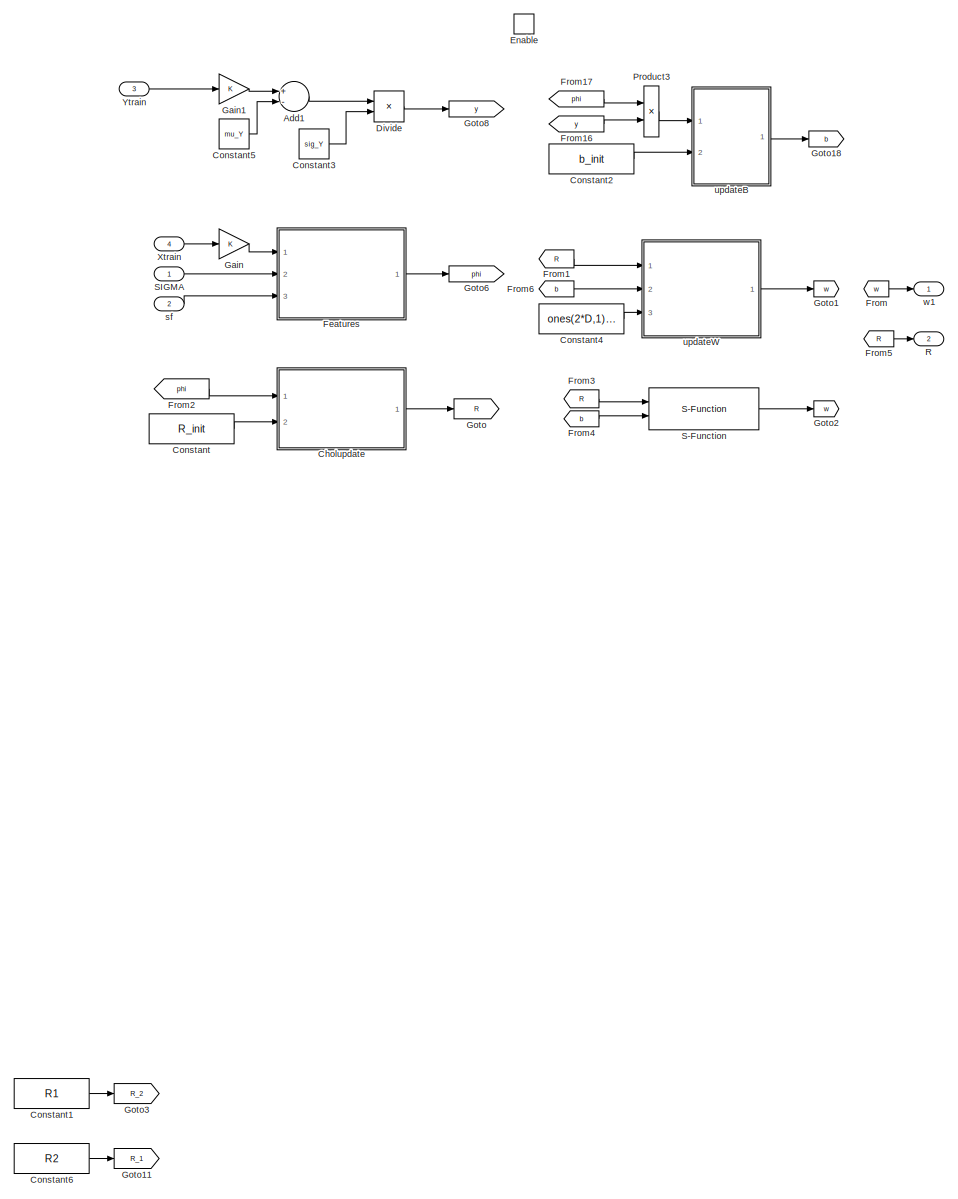
[diagram: Update Posterior - part 1/1, most of the canvas]
BLOCK [SubSystem] Update Posterior
  Ports = [4, 2, 1]
  RequestExecContextInheritance = off
BLOCK [Sum] Update Posterior/Add1
  InputSameDT = off
  Inputs = +-
  OutDataTypeStr = Inherit: Inherit via internal rule
  Ports = [2, 1]
  SaturateOnIntegerOverflow = off
BLOCK [SubSystem] Update Posterior/Cholupdate
  ErrorFcn = Stateflow.Translate.translate
  PermitHierarchicalResolution = ExplicitOnly
  Ports = [2, 1]
  RequestExecContextInheritance = off
  SFBlockType = MATLAB Function
  TreatAsAtomicUnit = on
BLOCK [Demux] Update Posterior/Cholupdate/ Demux 
  Outputs = 1
  Ports = [1, 1]
BLOCK [S-Function] Update Posterior/Cholupdate/ SFunction 
  EnableBusSupport = on
  FunctionName = sf_sfun
  Parameters = D,sn
  PortCounts = [2 2]
  Ports = [2, 2]
  SFcnIsStateOwnerBlock = off
  SFunctionDeploymentMode = off
  Tag = Stateflow S-Function TFlex_ISSGP 6
BLOCK [Terminator] Update Posterior/Cholupdate/ Terminator 
BLOCK [Inport] Update Posterior/Cholupdate/R_init
  IconDisplay = Port number
  Port = 2
BLOCK [Outport] Update Posterior/Cholupdate/R_out
  IconDisplay = Port number
BLOCK [Inport] Update Posterior/Cholupdate/phi
  IconDisplay = Port number
BLOCK [Constant] Update Posterior/Constant
  SampleTime = -1
  Value = R_init
BLOCK [Constant] Update Posterior/Constant1
  Commented = on
  SampleTime = -1
  Value = R1
  VectorParams1D = off
BLOCK [Constant] Update Posterior/Constant2
  SampleTime = -1
  Value = b_init
BLOCK [Constant] Update Posterior/Constant3
  SampleTime = -1
  Value = sig_Y
  VectorParams1D = off
BLOCK [Constant] Update Posterior/Constant4
  Commented = on
  SampleTime = ts
  Value = ones(2*D,1).*0.01
BLOCK [Constant] Update Posterior/Constant5
  SampleTime = -1
  Value = mu_Y
  VectorParams1D = off
BLOCK [Constant] Update Posterior/Constant6
  Commented = on
  SampleTime = -1
  Value = R2
  VectorParams1D = off
BLOCK [Product] Update Posterior/Divide
  InputSameDT = off
  Inputs = */
  OutDataTypeStr = Inherit: Inherit via internal rule
  Ports = [2, 1]
  RndMeth = Floor
  SaturateOnIntegerOverflow = off
BLOCK [EnablePort] Update Posterior/Enable
  Ports = []
BLOCK [SubSystem] Update Posterior/Features
  Ports = [3, 1]
  RequestExecContextInheritance = off
BLOCK [Constant] Update Posterior/Features/Constant
  SampleTime = -1
  Value = mu_X
  VectorParams1D = off
BLOCK [Constant] Update Posterior/Features/Constant1
  SampleTime = -1
  Value = sig_X
  VectorParams1D = off
BLOCK [Constant] Update Posterior/Features/Constant6
  SampleTime = -1
  Value = D
BLOCK [Product] Update Posterior/Features/Divide
  InputSameDT = off
  Inputs = */
  OutDataTypeStr = Inherit: Inherit via internal rule
  Ports = [2, 1]
  RndMeth = Floor
  SaturateOnIntegerOverflow = off
BLOCK [Product] Update Posterior/Features/Divide2
  InputSameDT = off
  Inputs = */
  OutDataTypeStr = Inherit: Inherit via internal rule
  Ports = [2, 1]
  RndMeth = Floor
  SaturateOnIntegerOverflow = off
BLOCK [Product] Update Posterior/Features/Product
  InputSameDT = off
  Multiplication = Matrix(*)
  OutDataTypeStr = Inherit: Inherit via internal rule
  Ports = [2, 1]
  RndMeth = Floor
  SaturateOnIntegerOverflow = off
BLOCK [Product] Update Posterior/Features/Product2
  InputSameDT = off
  OutDataTypeStr = Inherit: Inherit via internal rule
  Ports = [2, 1]
  RndMeth = Floor
  SaturateOnIntegerOverflow = off
BLOCK [Inport] Update Posterior/Features/SIGMA
  IconDisplay = Port number
  Port = 2
BLOCK [Sqrt] Update Posterior/Features/Sqrt
BLOCK [Sum] Update Posterior/Features/Sum
  IconShape = round
  InputSameDT = off
  Inputs = |+-
  OutDataTypeStr = Inherit: Inherit via internal rule
  Ports = [2, 1]
  SaturateOnIntegerOverflow = off
BLOCK [Math] Update Posterior/Features/Transpose
  Operator = transpose
  Ports = [1, 1]
BLOCK [Math] Update Posterior/Features/Transpose2
  Operator = transpose
  Ports = [1, 1]
BLOCK [Math] Update Posterior/Features/Transpose3
  Operator = transpose
  Ports = [1, 1]
BLOCK [Math] Update Posterior/Features/Transpose4
  Operator = transpose
  Ports = [1, 1]
BLOCK [Math] Update Posterior/Features/Transpose8
  Operator = transpose
  Ports = [1, 1]
BLOCK [Trigonometry] Update Posterior/Features/Trigonometric Function
  Operator = cos
  Ports = [1, 1]
BLOCK [Trigonometry] Update Posterior/Features/Trigonometric Function1
  Ports = [1, 1]
BLOCK [Concatenate] Update Posterior/Features/Vector Concatenate1
  Ports = [2, 1]
BLOCK [Outport] Update Posterior/Features/phi_out
  IconDisplay = Port number
BLOCK [Inport] Update Posterior/Features/sf
  IconDisplay = Port number
  Port = 3
BLOCK [Inport] Update Posterior/Features/x
  IconDisplay = Port number
BLOCK [From] Update Posterior/From
  GotoTag = w
BLOCK [From] Update Posterior/From1
  Commented = on
  GotoTag = R
BLOCK [From] Update Posterior/From16
  GotoTag = y
BLOCK [From] Update Posterior/From17
  GotoTag = phi
BLOCK [From] Update Posterior/From2
  GotoTag = phi
BLOCK [From] Update Posterior/From3
  GotoTag = R
BLOCK [From] Update Posterior/From4
  GotoTag = b
BLOCK [From] Update Posterior/From5
  GotoTag = R
BLOCK [From] Update Posterior/From6
  Commented = on
  GotoTag = b
BLOCK [Gain] Update Posterior/Gain
  OutDataTypeStr = Inherit: Inherit via internal rule
  ParamDataTypeStr = Inherit: Inherit via internal rule
  SaturateOnIntegerOverflow = off
BLOCK [Gain] Update Posterior/Gain1
  OutDataTypeStr = Inherit: Inherit via internal rule
  ParamDataTypeStr = Inherit: Inherit via internal rule
  SaturateOnIntegerOverflow = off
BLOCK [Goto] Update Posterior/Goto
  GotoTag = R
BLOCK [Goto] Update Posterior/Goto1
  Commented = on
  GotoTag = w
BLOCK [Goto] Update Posterior/Goto11
  Commented = on
  GotoTag = R_1
BLOCK [Goto] Update Posterior/Goto18
  GotoTag = b
BLOCK [Goto] Update Posterior/Goto2
  GotoTag = w
BLOCK [Goto] Update Posterior/Goto3
  Commented = on
  GotoTag = R_2
BLOCK [Goto] Update Posterior/Goto6
  GotoTag = phi
BLOCK [Goto] Update Posterior/Goto8
  GotoTag = y
BLOCK [Product] Update Posterior/Product3
  InputSameDT = off
  OutDataTypeStr = Inherit: Inherit via internal rule
  Ports = [2, 1]
  RndMeth = Floor
  SaturateOnIntegerOverflow = off
BLOCK [Outport] Update Posterior/R
  IconDisplay = Port number
  Port = 2
BLOCK [S-Function] Update Posterior/S-Function
  EnableBusSupport = off
  FunctionName = solve_chol_sfun
  Parameters = 2*D
  Ports = [2, 1]
  SFcnIsStateOwnerBlock = off
  SFunctionDeploymentMode = off
BLOCK [Inport] Update Posterior/SIGMA
  IconDisplay = Port number
BLOCK [Inport] Update Posterior/Xtrain
  IconDisplay = Port number
  Port = 4
  PortDimensions = [n,1]
BLOCK [Inport] Update Posterior/Ytrain
  IconDisplay = Port number
  Port = 3
  PortDimensions = [1,1]
BLOCK [Inport] Update Posterior/sf
  IconDisplay = Port number
  Port = 2
BLOCK [SubSystem] Update Posterior/updateB
  ErrorFcn = Stateflow.Translate.translate
  PermitHierarchicalResolution = ExplicitOnly
  Ports = [2, 1]
  RequestExecContextInheritance = off
  SFBlockType = MATLAB Function
  TreatAsAtomicUnit = on
BLOCK [Demux] Update Posterior/updateB/ Demux 
  Outputs = 1
  Ports = [1, 1]
BLOCK [S-Function] Update Posterior/updateB/ SFunction 
  EnableBusSupport = on
  FunctionName = sf_sfun
  Parameters = D
  PortCounts = [2 2]
  Ports = [2, 2]
  SFcnIsStateOwnerBlock = off
  SFunctionDeploymentMode = off
  Tag = Stateflow S-Function TFlex_ISSGP 8
BLOCK [Terminator] Update Posterior/updateB/ Terminator 
BLOCK [Inport] Update Posterior/updateB/b_init
  IconDisplay = Port number
  Port = 2
BLOCK [Outport] Update Posterior/updateB/b_out
  IconDisplay = Port number
BLOCK [Inport] Update Posterior/updateB/update
  IconDisplay = Port number
BLOCK [SubSystem] Update Posterior/updateW
  Commented = on
  ErrorFcn = Stateflow.Translate.translate
  PermitHierarchicalResolution = ExplicitOnly
  Ports = [3, 1]
  RequestExecContextInheritance = off
  SFBlockType = MATLAB Function
  TreatAsAtomicUnit = on
BLOCK [Demux] Update Posterior/updateW/ Demux 
  Outputs = 1
  Ports = [1, 1]
BLOCK [S-Function] Update Posterior/updateW/ SFunction 
  EnableBusSupport = on
  FunctionName = sf_sfun
  Parameters = D
  PortCounts = [3 2]
  Ports = [3, 2]
  SFcnIsStateOwnerBlock = off
  SFunctionDeploymentMode = off
  Tag = Stateflow S-Function TFlex_ISSGP 4
BLOCK [Terminator] Update Posterior/updateW/ Terminator 
BLOCK [Inport] Update Posterior/updateW/R
  IconDisplay = Port number
BLOCK [Inport] Update Posterior/updateW/b
  IconDisplay = Port number
  Port = 2
BLOCK [Inport] Update Posterior/updateW/w_init
  IconDisplay = Port number
  Port = 3
BLOCK [Outport] Update Posterior/updateW/w_out
  IconDisplay = Port number
BLOCK [Outport] Update Posterior/w1
  IconDisplay = Port number
BLOCK [Scope] control Output
  Floating = off
  NumInputPorts = 4
  Ports = [4]
  ScopeSpecificationString = Simulink.scopes.TimeScopeBlockCfg('CurrentConfiguration', extmgr.ConfigurationSet(extmgr.Configuration('Core','General UI',true),extmgr.Configuration('Core','Source UI',true),extmgr.Configuration('Sources','WiredSimulink',true,'DataLoggingVariableName','ScopeData3'),extmgr.Configuration('Visuals','Time Domain',true,'SerializedDisplays',{struct('MinYLimReal','-132236.47326','MaxYLimReal','102737.58...<+3496ch>
BLOCK [Gain] deg2rad
  Gain = pi/180
  OutDataTypeStr = Inherit: Inherit via internal rule
  ParamDataTypeStr = Inherit: Inherit via internal rule
  SaturateOnIntegerOverflow = off
BLOCK [Gain] deg2rad1
  Gain = pi/180
  OutDataTypeStr = Inherit: Inherit via internal rule
  ParamDataTypeStr = Inherit: Inherit via internal rule
  SaturateOnIntegerOverflow = off
BLOCK [Scope] hyperparameter
  Floating = off
  NumInputPorts = 3
  Ports = [3]
  ScopeSpecificationString = Simulink.scopes.TimeScopeBlockCfg('CurrentConfiguration', extmgr.ConfigurationSet(extmgr.Configuration('Core','General UI',true),extmgr.Configuration('Core','Source UI',true),extmgr.Configuration('Sources','WiredSimulink',true,'DataLoggingVariableName','ScopeData6'),extmgr.Configuration('Visuals','Time Domain',true,'SerializedDisplays',{struct('MinYLimReal','-134.48125','MaxYLimReal','1216.13125',...<+2815ch>
BLOCK [Scope] plant output
  Floating = off
  NumInputPorts = 3
  Ports = [3]
  ScopeSpecificationString = Simulink.scopes.TimeScopeBlockCfg('CurrentConfiguration', extmgr.ConfigurationSet(extmgr.Configuration('Core','General UI',true),extmgr.Configuration('Core','Source UI',true),extmgr.Configuration('Sources','WiredSimulink',true,'DataLoggingVariableName','ScopeData5'),extmgr.Configuration('Visuals','Time Domain',true,'SerializedDisplays',{struct('MinYLimReal','-33.18472','MaxYLimReal','29.71189','YL...<+3168ch>
ANNOTATION (root): Level 1 Inference
ANNOTATION (root): Level 2 Inference
ANNOTATION (root): Scopes & Logging
ANNOTATION (root): Storing Data for level 1 inference
ANNOTATION Adaptive PID: Adaptive PID controller - Parallel form
ANNOTATION Adaptive PID: Controller settings
ANNOTATION Adaptive PID: Parameters parallel form
ANNOTATION Adaptive PID: Parameters serial form
LINE Adaptive PID/Constant1:1 -> Adaptive PID/Goto1:1
LINE Adaptive PID/Constant2:1 -> Adaptive PID/Goto2:1
LINE Adaptive PID/Constant3:1 -> Adaptive PID/Goto3:1
LINE Adaptive PID/Discrete Derivative:1 -> Adaptive PID/Sum2:3
LINE Adaptive PID/Discrete-Time Integrator2:1 -> Adaptive PID/Sum2:1
LINE Adaptive PID/Divide1:1 -> Adaptive PID/Goto5:1
LINE Adaptive PID/Divide2:1 -> Adaptive PID/Goto7:1
LINE Adaptive PID/Divide3:1 -> Adaptive PID/Sum1:1
LINE Adaptive PID/Divide4:1 -> Adaptive PID/Goto9:1
LINE Adaptive PID/Divide5:1 -> Adaptive PID/Sum4:1
LINE Adaptive PID/Divide:1 -> Adaptive PID/Goto4:1
LINE Adaptive PID/From10:1 -> Adaptive PID/Sum:1
LINE Adaptive PID/From11:1 -> Adaptive PID/Sum:2
LINE Adaptive PID/From12:1 -> Adaptive PID/Divide3:2
LINE Adaptive PID/From13:1 -> Adaptive PID/Divide4:1
LINE Adaptive PID/From14:1 -> Adaptive PID/Divide4:2
LINE Adaptive PID/From15:1 -> Adaptive PID/Sum3:1
LINE Adaptive PID/From16:1 -> Adaptive PID/Sum3:2
LINE Adaptive PID/From17:1 -> Adaptive PID/Divide5:2
LINE Adaptive PID/From18:1 -> Adaptive PID/Multiply4:2
LINE Adaptive PID/From19:1 -> Adaptive PID/Sum5:2
LINE Adaptive PID/From1:1 -> Adaptive PID/Multiply:2
LINE Adaptive PID/From20:1 -> Adaptive PID/Multiply5:2
LINE Adaptive PID/From21:1 -> Adaptive PID/Multiply6:1
LINE Adaptive PID/From22:1 -> Adaptive PID/Multiply7:1
LINE Adaptive PID/From23:1 -> Adaptive PID/Multiply8:1
LINE Adaptive PID/From2:1 -> Adaptive PID/Sqrt1:1
LINE Adaptive PID/From3:1 -> Adaptive PID/Sqrt2:1
LINE Adaptive PID/From4:1 -> Adaptive PID/Divide1:2
LINE Adaptive PID/From5:1 -> Adaptive PID/Multiply1:1
LINE Adaptive PID/From6:1 -> Adaptive PID/Multiply1:2
LINE Adaptive PID/From7:1 -> Adaptive PID/Sqrt3:1
LINE Adaptive PID/From8:1 -> Adaptive PID/Multiply2:2
LINE Adaptive PID/From9:1 -> Adaptive PID/Multiply3:2
LINE Adaptive PID/From:1 -> Adaptive PID/Square:1
LINE Adaptive PID/Gain:1 -> Adaptive PID/Goto:1
LINE Adaptive PID/Lowpass:1 -> Adaptive PID/Multiply8:2
LINE Adaptive PID/Multiply1:1 -> Adaptive PID/Goto6:1
LINE Adaptive PID/Multiply2:1 -> Adaptive PID/Divide2:2
LINE Adaptive PID/Multiply3:1 -> Adaptive PID/Goto8:1
LINE Adaptive PID/Multiply4:1 -> Adaptive PID/Sum5:1
LINE Adaptive PID/Multiply5:1 -> Adaptive PID/Goto10:1
LINE Adaptive PID/Multiply6:1 -> Adaptive PID/Discrete-Time Integrator2:1
LINE Adaptive PID/Multiply7:1 -> Adaptive PID/Sum2:2
LINE Adaptive PID/Multiply8:1 -> Adaptive PID/Discrete Derivative:1
LINE Adaptive PID/Multiply:1 -> Adaptive PID/Divide:1
LINE Adaptive PID/One1:1 -> Adaptive PID/Sum1:2
LINE Adaptive PID/One2:1 -> Adaptive PID/Sum4:2
LINE Adaptive PID/One:1 -> Adaptive PID/Divide2:1
LINE Adaptive PID/Sqrt1:1 -> Adaptive PID/Divide:2
LINE Adaptive PID/Sqrt2:1 -> Adaptive PID/Divide1:1
LINE Adaptive PID/Sqrt3:1 -> Adaptive PID/Multiply2:1
LINE Adaptive PID/Square:1 -> Adaptive PID/Multiply:1
LINE Adaptive PID/Sum1:1 -> Adaptive PID/Multiply3:1
LINE Adaptive PID/Sum2:1 -> Adaptive PID/Control output:1
LINE Adaptive PID/Sum3:1 -> Adaptive PID/Divide5:1
LINE Adaptive PID/Sum4:1 -> Adaptive PID/Multiply4:1
LINE Adaptive PID/Sum5:1 -> Adaptive PID/Multiply5:1
LINE Adaptive PID/Sum:1 -> Adaptive PID/Divide3:1
NET Adaptive PID/e:1 -> Adaptive PID/Lowpass:1, Adaptive PID/Multiply6:2, Adaptive PID/Multiply7:2
LINE Adaptive PID/w_c [hz]:1 -> Adaptive PID/Gain:1
NET Adaptive PID:1 -> Goto8:1, Sum11:2
NET Band-Limited White Noise1:1 -> Goto2:1, Sum8:1
LINE Band-Limited White Noise:1 -> Multiply2:1
LINE Bus Selector1:1 -> Sum:1
LINE Bus Selector4:1 -> plant output:1
LINE Bus Selector4:2 -> plant output:2
LINE Bus Selector4:3 -> plant output:3
LINE Bus Selector5:1 -> Setpoint:1
LINE Bus Selector5:2 -> Setpoint:2
LINE Bus Selector5:3 -> Setpoint:3
LINE Bus Selector:1 -> Goto5:1
LINE Cogging/Gain:1 -> Cogging/Sine Wave Function:1
LINE Cogging/Position:1 -> Cogging/Gain:1
LINE Cogging/Sine Wave Function:1 -> Cogging/Sum of Elements:1
NET Cogging/Sum of Elements:1 -> Cogging/Cogging [mA]:1, Cogging/Scope:1
NET Cogging:1 -> Goto11:1, Sum6:2
LINE Constant1:1 -> I-SSGP Predictions:6
LINE Constant2:1 -> Multiply:2
LINE Constant3:1 -> Multiply1:2
LINE Constant4:1 -> Multiport Switch:1
LINE Constant5:1 -> Multiply3:2
LINE Constant7:1 -> Subsystem:1
LINE Constant8:1 -> Multiport Switch:2
LINE Constant:1 -> Subsystem:2
LINE Delay1:1 -> Sum7:1
LINE Delay2:1 -> IC1:1
LINE Delay3:1 -> Sum:2
LINE Delay4:1 -> State Variable filter1:1
NET Delay6:1 -> Delay3:1, Goto16:1, State Variable filter:1
LINE Delay:1 -> IC:1
LINE From10:1 -> To Workspace8:1
LINE From11:1 -> Scope:3
LINE From12:1 -> hyperparameter:2
LINE From13:1 -> To Workspace2:1
LINE From14:1 -> To Workspace5:1
LINE From15:1 -> To Workspace6:1
LINE From16:1 -> Scope:4
LINE From17:1 -> Bus Selector5:1
LINE From18:1 -> To Workspace9:1
LINE From19:1 -> To Workspace11:1
LINE From1:1 -> I-SSGP Predictions:2
LINE From20:1 -> Bus Selector4:1
LINE From21:1 -> To Workspace4:1
LINE From22:1 -> Gain2:1
LINE From23:1 -> Delay5:1
LINE From24:1 -> Gain3:1
LINE From25:1 -> Sum13:1
LINE From26:1 -> control Output:2
LINE From27:1 -> control Output:3
LINE From28:1 -> control Output:1
LINE From29:1 -> Scope:1
LINE From2:1 -> Rate Transition7:1
LINE From30:1 -> Mux:2
LINE From31:1 -> Mux:1
LINE From32:1 -> control Output:4
LINE From33:1 -> Sum15:1
LINE From34:1 -> Sum14:1
LINE From35:1 -> To Workspace10:1
LINE From36:1 -> Scope:2
LINE From37:1 -> Delay4:1
LINE From38:1 -> hyperparameter:3
LINE From39:1 -> I-SSGP Predictions:5
LINE From3:1 -> Rate Transition8:1
NET From40:1 -> Scope2:1, To Workspace7:1
LINE From4:1 -> Rate Transition4:1
LINE From5:1 -> Rate Transition3:1
LINE From6:1 -> Rate Transition9:1
LINE From7:1 -> Rate Transition1:1
LINE From8:1 -> hyperparameter:1
LINE From9:1 -> I-SSGP Predictions:3
LINE From:1 -> I-SSGP Predictions:1
LINE Gain2:1 -> To Workspace3:1
LINE Gain3:1 -> To Workspace1:1
LINE Gain:1 -> Sum5:1
NET Gravity:1 -> Scope5:1, Sum12:2
LINE I-SSGP Predictions/Add:1 -> I-SSGP Predictions/Product1:2
LINE I-SSGP Predictions/Constant1:1 -> I-SSGP Predictions/Add:2
LINE I-SSGP Predictions/Constant:1 -> I-SSGP Predictions/Product:2
LINE I-SSGP Predictions/Discrete-Time Integrator:1 -> I-SSGP Predictions/Saturation1:1
LINE I-SSGP Predictions/Dot Product1:1 -> I-SSGP Predictions/Sum:1
LINE I-SSGP Predictions/Dot Product:1 -> I-SSGP Predictions/Product:1
LINE I-SSGP Predictions/Multiply:1 -> I-SSGP Predictions/Variance:1
LINE I-SSGP Predictions/One:1 -> I-SSGP Predictions/Sum:2
LINE I-SSGP Predictions/Product1:1 -> I-SSGP Predictions/FF_SSGP:1
LINE I-SSGP Predictions/Product:1 -> I-SSGP Predictions/Add:1
LINE I-SSGP Predictions/R:1 -> I-SSGP Predictions/Transpose:1
NET I-SSGP Predictions/S-Function:1 -> I-SSGP Predictions/Dot Product1:1, I-SSGP Predictions/Dot Product1:2
LINE I-SSGP Predictions/SIGMA:1 -> I-SSGP Predictions/Subsystem:2
NET I-SSGP Predictions/Saturation1:1 -> I-SSGP Predictions/Product1:1, I-SSGP Predictions/Scope:1
LINE I-SSGP Predictions/Square:1 -> I-SSGP Predictions/Multiply:2
LINE I-SSGP Predictions/Step:1 -> I-SSGP Predictions/slope:1
LINE I-SSGP Predictions/Subsystem/Constant1:1 -> I-SSGP Predictions/Subsystem/Divide:2
LINE I-SSGP Predictions/Subsystem/Constant6:1 -> I-SSGP Predictions/Subsystem/Sqrt:1
LINE I-SSGP Predictions/Subsystem/Constant:1 -> I-SSGP Predictions/Subsystem/Sum:2
LINE I-SSGP Predictions/Subsystem/Divide2:1 -> I-SSGP Predictions/Subsystem/Product2:1
LINE I-SSGP Predictions/Subsystem/Divide:1 -> I-SSGP Predictions/Subsystem/Transpose1:1
LINE I-SSGP Predictions/Subsystem/Product2:1 -> I-SSGP Predictions/Subsystem/phi_1:1
NET I-SSGP Predictions/Subsystem/Product:1 -> I-SSGP Predictions/Subsystem/Trigonometric Function1:1, I-SSGP Predictions/Subsystem/Trigonometric Function:1
LINE I-SSGP Predictions/Subsystem/SIGMA:1 -> I-SSGP Predictions/Subsystem/Product:1
LINE I-SSGP Predictions/Subsystem/Sqrt:1 -> I-SSGP Predictions/Subsystem/Divide2:2
LINE I-SSGP Predictions/Subsystem/Sum:1 -> I-SSGP Predictions/Subsystem/Divide:1
LINE I-SSGP Predictions/Subsystem/Transpose1:1 -> I-SSGP Predictions/Subsystem/Product:2
LINE I-SSGP Predictions/Subsystem/Transpose2:1 -> I-SSGP Predictions/Subsystem/Vector Concatenate1:1
LINE I-SSGP Predictions/Subsystem/Transpose3:1 -> I-SSGP Predictions/Subsystem/Vector Concatenate1:2
LINE I-SSGP Predictions/Subsystem/Transpose4:1 -> I-SSGP Predictions/Subsystem/Product2:2
LINE I-SSGP Predictions/Subsystem/Transpose:1 -> I-SSGP Predictions/Subsystem/Sum:1
LINE I-SSGP Predictions/Subsystem/Trigonometric Function1:1 -> I-SSGP Predictions/Subsystem/Transpose3:1
LINE I-SSGP Predictions/Subsystem/Trigonometric Function:1 -> I-SSGP Predictions/Subsystem/Transpose2:1
LINE I-SSGP Predictions/Subsystem/Vector Concatenate1:1 -> I-SSGP Predictions/Subsystem/Transpose4:1
LINE I-SSGP Predictions/Subsystem/r:1 -> I-SSGP Predictions/Subsystem/Transpose:1
LINE I-SSGP Predictions/Subsystem/sf:1 -> I-SSGP Predictions/Subsystem/Divide2:1
NET I-SSGP Predictions/Subsystem:1 -> I-SSGP Predictions/Dot Product:2, I-SSGP Predictions/S-Function:2
LINE I-SSGP Predictions/Sum:1 -> I-SSGP Predictions/Multiply:1
LINE I-SSGP Predictions/Transpose:1 -> I-SSGP Predictions/S-Function:1
LINE I-SSGP Predictions/r:1 -> I-SSGP Predictions/Subsystem:1
LINE I-SSGP Predictions/sf:1 -> I-SSGP Predictions/Subsystem:3
LINE I-SSGP Predictions/slope:1 -> I-SSGP Predictions/Discrete-Time Integrator:1
LINE I-SSGP Predictions/sn:1 -> I-SSGP Predictions/Square:1
LINE I-SSGP Predictions/w:1 -> I-SSGP Predictions/Dot Product:1
NET I-SSGP Predictions:1 -> Goto10:1, Sum11:1
LINE I-SSGP Predictions:2 -> Sum5:2
LINE IC1:1 -> Goto20:1
LINE IC:1 -> Goto:1
LINE MATLAB Function:2 -> Scope3:1
LINE Multiply1:1 -> Sum15:2
NET Multiply2:1 -> Goto15:1, Sum7:2
LINE Multiply3:1 -> Sum13:2
LINE Multiply:1 -> Sum14:2
NET Multiport Switch:1 -> Skewsine Setpoint Generator:1, TDfhan:1
LINE Mux:1 -> Goto1:1
LINE One1:1 -> Sum4:1
LINE One:1 -> Sum1:2
LINE Position dependent noise:1 -> Multiply2:2
LINE Pulse Generator2:1 -> Sum3:1
NET Quantizer:1 -> Delay1:1, Setpoint current [mA]:1
LINE Rate Transition10:1 -> Update Posterior:enable
LINE Rate Transition11:1 -> Delay:1
LINE Rate Transition12:1 -> Delay2:1
LINE Rate Transition1:1 -> Update Posterior:2
LINE Rate Transition2:1 -> Goto6:1
LINE Rate Transition3:1 -> Subsystem1:2
LINE Rate Transition4:1 -> Subsystem1:1
LINE Rate Transition5:1 -> Goto12:1
LINE Rate Transition6:1 -> Goto7:1
LINE Rate Transition7:1 -> Update Posterior:3
LINE Rate Transition8:1 -> Update Posterior:4
LINE Rate Transition9:1 -> Update Posterior:1
NET Rate Transition:1 -> Cogging:1, Subsystem2:1, Sum8:2, deg2rad1:1, deg2rad:1
NET Saturation1:1 -> Adaptive PID:2, Goto21:1
LINE Saturation:1 -> Quantizer:1
LINE Sine Wave1:1 -> Bus Creator:2
LINE Sine Wave2:1 -> Bus Creator:3
LINE Sine Wave:1 -> Bus Creator:1
LINE Skewsine Setpoint Generator/Bus Creator:1 -> Skewsine Setpoint Generator/ref:1
LINE Skewsine Setpoint Generator/Setpoint:1 -> Skewsine Setpoint Generator/Subsystem:1
LINE Skewsine Setpoint Generator/Subsystem/Clock:1 -> Skewsine Setpoint Generator/Subsystem/Sum6:3
LINE Skewsine Setpoint Generator/Subsystem/Constant1:1 -> Skewsine Setpoint Generator/Subsystem/Sum6:1
LINE Skewsine Setpoint Generator/Subsystem/Constant2:1 -> Skewsine Setpoint Generator/Subsystem/MATLAB Function:2
LINE Skewsine Setpoint Generator/Subsystem/Constant:1 -> Skewsine Setpoint Generator/Subsystem/Sum5:2
LINE Skewsine Setpoint Generator/Subsystem/Delay4:1 -> Skewsine Setpoint Generator/Subsystem/Sum5:1
LINE Skewsine Setpoint Generator/Subsystem/Delay:1 -> Skewsine Setpoint Generator/Subsystem/Sum:1
LINE Skewsine Setpoint Generator/Subsystem/Gain:1 -> Skewsine Setpoint Generator/Subsystem/Sum6:2
LINE Skewsine Setpoint Generator/Subsystem/MATLAB Function:1 -> Skewsine Setpoint Generator/Subsystem/Sum2:2
LINE Skewsine Setpoint Generator/Subsystem/MATLAB Function:2 -> Skewsine Setpoint Generator/Subsystem/r_dot:1
LINE Skewsine Setpoint Generator/Subsystem/MATLAB Function:3 -> Skewsine Setpoint Generator/Subsystem/r_ddot:1
LINE Skewsine Setpoint Generator/Subsystem/Rate Transition:1 -> Skewsine Setpoint Generator/Subsystem/Sum2:1
NET Skewsine Setpoint Generator/Subsystem/Sum2:1 -> Skewsine Setpoint Generator/Subsystem/Scope:2, Skewsine Setpoint Generator/Subsystem/r:1
NET Skewsine Setpoint Generator/Subsystem/Sum5:1 -> Skewsine Setpoint Generator/Subsystem/Delay4:1, Skewsine Setpoint Generator/Subsystem/Gain:1
LINE Skewsine Setpoint Generator/Subsystem/Sum6:1 -> Skewsine Setpoint Generator/Subsystem/MATLAB Function:3
LINE Skewsine Setpoint Generator/Subsystem/Sum:1 -> Skewsine Setpoint Generator/Subsystem/MATLAB Function:1
NET Skewsine Setpoint Generator/Subsystem/setpoint:1 -> Skewsine Setpoint Generator/Subsystem/Delay:1, Skewsine Setpoint Generator/Subsystem/Rate Transition:1, Skewsine Setpoint Generator/Subsystem/Scope:1, Skewsine Setpoint Generator/Subsystem/Sum:2
LINE Skewsine Setpoint Generator/Subsystem:1 -> Skewsine Setpoint Generator/Bus Creator:1
LINE Skewsine Setpoint Generator/Subsystem:2 -> Skewsine Setpoint Generator/Bus Creator:2
LINE Skewsine Setpoint Generator/Subsystem:3 -> Skewsine Setpoint Generator/Bus Creator:3
NET Skewsine Setpoint Generator:1 -> Bus Selector1:1, Goto4:1, I-SSGP Predictions:4, Subsystem3:1
LINE State Variable filter/Angle [deg]:1 -> State Variable filter/Sum:1
LINE State Variable filter/Bus Creator:1 -> State Variable filter/Filtered state [deg]:1
NET State Variable filter/Discrete-Time Integrator1:1 -> State Variable filter/Discrete-Time Integrator2:1, State Variable filter/Gain1:1, State Variable filter/Gain4:1
NET State Variable filter/Discrete-Time Integrator2:1 -> State Variable filter/Gain3:1, State Variable filter/Gain:1
NET State Variable filter/Discrete-Time Integrator:1 -> State Variable filter/Discrete-Time Integrator1:1, State Variable filter/Gain2:1, State Variable filter/Gain5:1
LINE State Variable filter/Gain1:1 -> State Variable filter/Sum5:2
NET State Variable filter/Gain2:1 -> State Variable filter/Bus Creator:3, State Variable filter/State SVF:3
NET State Variable filter/Gain3:1 -> State Variable filter/Bus Creator:1, State Variable filter/State SVF:1
NET State Variable filter/Gain4:1 -> State Variable filter/Bus Creator:2, State Variable filter/State SVF:2
LINE State Variable filter/Gain5:1 -> State Variable filter/Sum1:2
LINE State Variable filter/Gain:1 -> State Variable filter/Sum:2
LINE State Variable filter/Sum1:1 -> State Variable filter/Discrete-Time Integrator:1
LINE State Variable filter/Sum5:1 -> State Variable filter/Sum1:1
LINE State Variable filter/Sum:1 -> State Variable filter/Sum5:1
LINE State Variable filter1/Angle [deg]:1 -> State Variable filter1/Sum:1
LINE State Variable filter1/Bus Creator:1 -> State Variable filter1/Filtered state [deg]:1
NET State Variable filter1/Discrete-Time Integrator1:1 -> State Variable filter1/Discrete-Time Integrator2:1, State Variable filter1/Gain1:1, State Variable filter1/Gain4:1
NET State Variable filter1/Discrete-Time Integrator2:1 -> State Variable filter1/Gain3:1, State Variable filter1/Gain:1
NET State Variable filter1/Discrete-Time Integrator:1 -> State Variable filter1/Discrete-Time Integrator1:1, State Variable filter1/Gain2:1, State Variable filter1/Gain5:1
LINE State Variable filter1/Gain1:1 -> State Variable filter1/Sum5:2
NET State Variable filter1/Gain2:1 -> State Variable filter1/Bus Creator:3, State Variable filter1/State SVF:3
NET State Variable filter1/Gain3:1 -> State Variable filter1/Bus Creator:1, State Variable filter1/State SVF:1
NET State Variable filter1/Gain4:1 -> State Variable filter1/Bus Creator:2, State Variable filter1/State SVF:2
LINE State Variable filter1/Gain5:1 -> State Variable filter1/Sum1:2
LINE State Variable filter1/Gain:1 -> State Variable filter1/Sum:2
LINE State Variable filter1/Sum1:1 -> State Variable filter1/Discrete-Time Integrator:1
LINE State Variable filter1/Sum5:1 -> State Variable filter1/Sum1:1
LINE State Variable filter1/Sum:1 -> State Variable filter1/Sum5:1
LINE State Variable filter1:1 -> Bus Selector:1
NET State Variable filter:1 -> Goto3:1, Subsystem4:1
LINE Step10:1 -> Multiply3:1
LINE Step1:1 -> Rate Transition10:1
LINE Step2:1 -> Multiply:1
LINE Step3:1 -> Sum2:1
LINE Step4:1 -> Sum2:2
LINE Step6:1 -> Sum9:1
LINE Step7:1 -> Sum9:2
LINE Step8:1 -> Multiply1:1
LINE Step9:1 -> Sum3:2
NET Step:1 -> I-SSGP Predictions:enable, Sum4:2
LINE Subsystem/Bus Creator:1 -> Subsystem/ell:1
LINE Subsystem/Constant13:1 -> Subsystem/MATLAB Function1:1
LINE Subsystem/Data Store Read1:1 -> Subsystem/MATLAB Function:2
LINE Subsystem/Data Store Read:1 -> Subsystem/MATLAB Function:3
LINE Subsystem/Demux:1 -> Subsystem/Bus Creator:1
LINE Subsystem/Demux:2 -> Subsystem/Bus Creator:2
LINE Subsystem/Demux:3 -> Subsystem/Bus Creator:3
LINE Subsystem/Demux:4 -> Subsystem/sf:1
LINE Subsystem/MATLAB Function1:1 -> Subsystem/SIGMA:1
NET Subsystem/MATLAB Function:1 -> Subsystem/Demux:1, Subsystem/MATLAB Function1:2
LINE Subsystem/MATLAB Function:2 -> Subsystem/beta:1
LINE Subsystem/hyp_init:1 -> Subsystem/MATLAB Function:1
LINE Subsystem/sn:1 -> Subsystem/MATLAB Function:4
LINE Subsystem1/Add1:1 -> Subsystem1/Divide:1
LINE Subsystem1/Add2:1 -> Subsystem1/Divide1:1
LINE Subsystem1/Bus Selector:1 -> Subsystem1/Scope:1
LINE Subsystem1/Bus Selector:2 -> Subsystem1/Scope:2
LINE Subsystem1/Bus Selector:3 -> Subsystem1/Scope:3
LINE Subsystem1/Constant3:1 -> Subsystem1/Divide1:2
LINE Subsystem1/Constant4:1 -> Subsystem1/Add2:2
LINE Subsystem1/Constant8:1 -> Subsystem1/Divide:2
LINE Subsystem1/Constant9:1 -> Subsystem1/Add1:2
LINE Subsystem1/Divide1:1 -> Subsystem1/MATLAB Function2:1
LINE Subsystem1/Divide:1 -> Subsystem1/MATLAB Function1:1
NET Subsystem1/X:1 -> Subsystem1/Add2:1, Subsystem1/Bus Selector:1
LINE Subsystem1/Y:1 -> Subsystem1/Add1:1
NET Subsystem2/Discrete Derivative:1 -> Subsystem2/MATLAB Function:1, Subsystem2/Sum1:1
NET Subsystem2/Discrete-Time Integrator:1 -> Subsystem2/Hysteresis.gain:1, Subsystem2/MATLAB Function:3
LINE Subsystem2/Hysteresis.gain:1 -> Subsystem2/Hysteresis:1
LINE Subsystem2/MATLAB Function:1 -> Subsystem2/Sum1:2
LINE Subsystem2/Sum1:1 -> Subsystem2/Discrete-Time Integrator:1
LINE Subsystem2/angle:1 -> Subsystem2/Discrete Derivative:1
LINE Subsystem2/p0:1 -> Subsystem2/MATLAB Function:2
NET Subsystem2:1 -> Goto18:1, Sum12:1
LINE Subsystem3/Bus Selector2:1 -> Subsystem3/k_est:1
LINE Subsystem3/Bus Selector3:1 -> Subsystem3/m_est:1
LINE Subsystem3/Sum16:1 -> Subsystem3/RBD FF:1
LINE Subsystem3/k_est:1 -> Subsystem3/Sum16:1
LINE Subsystem3/m_est:1 -> Subsystem3/Sum16:2
NET Subsystem3/ref:1 -> Subsystem3/Bus Selector2:1, Subsystem3/Bus Selector3:1
LINE Subsystem4/Bus Selector2:1 -> Subsystem4/k_est:1
LINE Subsystem4/Bus Selector3:1 -> Subsystem4/m_est:1
LINE Subsystem4/Sum16:1 -> Subsystem4/RBD FF:1
LINE Subsystem4/k_est:1 -> Subsystem4/Sum16:1
LINE Subsystem4/m_est:1 -> Subsystem4/Sum16:2
NET Subsystem4/ref:1 -> Subsystem4/Bus Selector2:1, Subsystem4/Bus Selector3:1
LINE Subsystem:1 -> Rate Transition2:1
LINE Subsystem:2 -> Rate Transition5:1
LINE Subsystem:3 -> Rate Transition6:1
LINE Subsystem:4 -> Goto19:1
LINE Sum10:1 -> TFlex:1
LINE Sum11:1 -> Saturation:1
LINE Sum12:1 -> Sum6:1
LINE Sum13:1 -> Goto17:1
LINE Sum14:1 -> Goto13:1
LINE Sum15:1 -> Goto14:1
NET Sum1:1 -> Saturation1:1, Scope4:1
LINE Sum2:1 -> Subsystem:enable
LINE Sum3:1 -> Multiport Switch:4
LINE Sum4:1 -> Gain:1
NET Sum5:1 -> MATLAB Function:1, Scope1:1
LINE Sum6:1 -> Sum10:2
NET Sum7:1 -> Actual current [mA]:1, Sum10:1
LINE Sum8:1 -> Delay6:1
LINE Sum9:1 -> Subsystem1:enable
NET Sum:1 -> Adaptive PID:1, Goto9:1
LINE TDfhan/Bus Creator:1 -> TDfhan/ref:1
LINE TDfhan/Constant1:1 -> TDfhan/MATLAB Function2:4
LINE TDfhan/Constant:1 -> TDfhan/MATLAB Function2:3
NET TDfhan/Discrete-Time Integrator1:1 -> TDfhan/Bus Creator:1, TDfhan/Scope:1, TDfhan/Sum:1
NET TDfhan/Discrete-Time Integrator:1 -> TDfhan/Bus Creator:2, TDfhan/Discrete-Time Integrator1:1, TDfhan/MATLAB Function2:2, TDfhan/Scope:2
NET TDfhan/MATLAB Function2:1 -> TDfhan/Bus Creator:3, TDfhan/Discrete-Time Integrator:1, TDfhan/Scope:3
LINE TDfhan/P_init:1 -> TDfhan/Discrete-Time Integrator1:2
LINE TDfhan/Sum:1 -> TDfhan/MATLAB Function2:1
LINE TDfhan/V:1 -> TDfhan/Sum:2
LINE TFlex:1 -> Rate Transition:1
LINE Uniform Random Number1:1 -> Multiport Switch:3
LINE Update Posterior/Add1:1 -> Update Posterior/Divide:1
LINE Update Posterior/Cholupdate:1 -> Update Posterior/Goto:1
LINE Update Posterior/Constant1:1 -> Update Posterior/Goto3:1
LINE Update Posterior/Constant2:1 -> Update Posterior/updateB:2
LINE Update Posterior/Constant3:1 -> Update Posterior/Divide:2
LINE Update Posterior/Constant4:1 -> Update Posterior/updateW:3
LINE Update Posterior/Constant5:1 -> Update Posterior/Add1:2
LINE Update Posterior/Constant6:1 -> Update Posterior/Goto11:1
LINE Update Posterior/Constant:1 -> Update Posterior/Cholupdate:2
LINE Update Posterior/Divide:1 -> Update Posterior/Goto8:1
LINE Update Posterior/Features/Constant1:1 -> Update Posterior/Features/Divide:2
LINE Update Posterior/Features/Constant6:1 -> Update Posterior/Features/Sqrt:1
LINE Update Posterior/Features/Constant:1 -> Update Posterior/Features/Sum:2
LINE Update Posterior/Features/Divide2:1 -> Update Posterior/Features/Product2:1
LINE Update Posterior/Features/Divide:1 -> Update Posterior/Features/Transpose:1
LINE Update Posterior/Features/Product2:1 -> Update Posterior/Features/phi_out:1
NET Update Posterior/Features/Product:1 -> Update Posterior/Features/Trigonometric Function1:1, Update Posterior/Features/Trigonometric Function:1
LINE Update Posterior/Features/SIGMA:1 -> Update Posterior/Features/Product:1
LINE Update Posterior/Features/Sqrt:1 -> Update Posterior/Features/Divide2:2
LINE Update Posterior/Features/Sum:1 -> Update Posterior/Features/Divide:1
LINE Update Posterior/Features/Transpose2:1 -> Update Posterior/Features/Vector Concatenate1:1
LINE Update Posterior/Features/Transpose3:1 -> Update Posterior/Features/Vector Concatenate1:2
LINE Update Posterior/Features/Transpose4:1 -> Update Posterior/Features/Product2:2
LINE Update Posterior/Features/Transpose8:1 -> Update Posterior/Features/Sum:1
LINE Update Posterior/Features/Transpose:1 -> Update Posterior/Features/Product:2
LINE Update Posterior/Features/Trigonometric Function1:1 -> Update Posterior/Features/Transpose3:1
LINE Update Posterior/Features/Trigonometric Function:1 -> Update Posterior/Features/Transpose2:1
LINE Update Posterior/Features/Vector Concatenate1:1 -> Update Posterior/Features/Transpose4:1
LINE Update Posterior/Features/sf:1 -> Update Posterior/Features/Divide2:1
LINE Update Posterior/Features/x:1 -> Update Posterior/Features/Transpose8:1
LINE Update Posterior/Features:1 -> Update Posterior/Goto6:1
LINE Update Posterior/From16:1 -> Update Posterior/Product3:2
LINE Update Posterior/From17:1 -> Update Posterior/Product3:1
LINE Update Posterior/From1:1 -> Update Posterior/updateW:1
LINE Update Posterior/From2:1 -> Update Posterior/Cholupdate:1
LINE Update Posterior/From3:1 -> Update Posterior/S-Function:1
LINE Update Posterior/From4:1 -> Update Posterior/S-Function:2
LINE Update Posterior/From5:1 -> Update Posterior/R:1
LINE Update Posterior/From6:1 -> Update Posterior/updateW:2
LINE Update Posterior/From:1 -> Update Posterior/w1:1
LINE Update Posterior/Gain1:1 -> Update Posterior/Add1:1
LINE Update Posterior/Gain:1 -> Update Posterior/Features:1
LINE Update Posterior/Product3:1 -> Update Posterior/updateB:1
LINE Update Posterior/S-Function:1 -> Update Posterior/Goto2:1
LINE Update Posterior/SIGMA:1 -> Update Posterior/Features:2
LINE Update Posterior/Xtrain:1 -> Update Posterior/Gain:1
LINE Update Posterior/Ytrain:1 -> Update Posterior/Gain1:1
LINE Update Posterior/sf:1 -> Update Posterior/Features:3
LINE Update Posterior/updateB:1 -> Update Posterior/Goto18:1
LINE Update Posterior/updateW:1 -> Update Posterior/Goto1:1
LINE Update Posterior:1 -> Rate Transition11:1
LINE Update Posterior:2 -> Rate Transition12:1
LINE deg2rad1:1 -> Gravity:1
LINE deg2rad:1 -> Position dependent noise:1
note: NET lines group one-source signal fan-out (src -> all destinations, sorted); 1:1 wires keep LINE
CHART Subsystem1/MATLAB Function2 states=1 transitions=1
  STATE_LABEL 'eML_blk_kernel()'
  STATE_LABEL 'SCRIPT:\nfunction writeTo(x)\nglobal X \n\nX = [X(2:end,:);x];\n\n'
CHART Skewsine Setpoint Generator/Subsystem/MATLAB Function states=1 transitions=1
  STATE_LABEL 'eML_blk_kernel()'
  STATE_LABEL 'SCRIPT:\nfunction [x,x_dot,x_ddot] = skewSine(hm,tm,t)\n\nif (t>=0) && (t<=tm)\n    x      = hm/tm*t - hm/(2*pi)*sin(2*pi/tm*t);\n    x_dot  = hm/tm - hm/tm*cos(2*pi/tm*t);\n    x_ddot = 2*pi*hm/(tm^2)*sin(2*pi/tm*t);\nelse\n    x      = hm;\n    x_dot  = 0;\n    x_ddot = 0;\nend\n\n'
CHART Subsystem/MATLAB Function1 states=1 transitions=1
  STATE_LABEL 'eML_blk_kernel()'
  STATE_LABEL 'SCRIPT:\nfunction SIGMA  = fcn(RAND,hyp)\n\nSIGMA = zeros(size(RAND));\nSIGMA(:,1) = RAND(:,1).*hyp(1);\nSIGMA(:,2) = RAND(:,2).*hyp(2);\nSIGMA(:,3) = RAND(:,3).*hyp(3);\n'
CHART Update Posterior/updateW states=1 transitions=1
  STATE_LABEL 'eML_blk_kernel()'
  STATE_LABEL "SCRIPT:\nfunction w_out = updateW(R,b,w_init,D) \npersistent w\nif(isempty(w))\n    w = w_init;\nend\ncoder.extrinsic('solve_chol');\nw = solve_chol(R,b);\n%w = R\\(R'\\b);\nw_out = w;\n"
CHART Subsystem2/MATLAB Function states=1 transitions=1
  STATE_LABEL 'eML_blk_kernel()'
  STATE_LABEL 'SCRIPT:\nfunction y = fcn(Vr,p0,p)\nif Vr>0 && p>=p0\n    y = Vr;\nelseif Vr<0 && p<=-p0\n    y = Vr;\nelse\n    y = 0;\nend\n'
CHART Update Posterior/Cholupdate states=1 transitions=1
  STATE_LABEL 'eML_blk_kernel()'
  STATE_LABEL 'SCRIPT:\nfunction R_out = cholupdate_fcn(phi, R_init, D, sn)\npersistent R; \nif(isempty(R))\n    R = R_init;\nend\nR = cholupdate(R,phi);\nR_out = R;'
CHART TDfhan/MATLAB Function2 states=1 transitions=1
  STATE_LABEL 'eML_blk_kernel()'
  STATE_LABEL 'SCRIPT:\nfunction output = Fhan(v1,v2,r0, h0)\nd = h0^2*r0;\na0 = h0*v2;\ny = v1 + a0;\na1 = sqrt(d*(d+8*abs(y)));\na2 = a0 + sign(y)*(a1-d)/2;\nsy = (sign(y+d)-sign(y-d))/2;\na = (a0+y-a2)*sy +a2;\nsa = (sign(a+d)-sign(a-d))/2;\noutput = -r0 *(a/d -sign(a) )*sa - r0*sign(a);\n'
CHART Update Posterior/updateB states=1 transitions=1
  STATE_LABEL 'eML_blk_kernel()'
  STATE_LABEL 'SCRIPT:\nfunction b_out = updateB(update, b_init, D)\npersistent b \nif(isempty(b))\n    b = b_init;\nend\n\nb = b + update;\nb_out = b;\n'
CHART MATLAB Function states=1 transitions=1
  STATE_LABEL 'eML_blk_kernel()'
  STATE_LABEL 'SCRIPT:\nfunction [crossover,z] = crossover(variance, sn)\ncrossoverMax = 20;\ncrossoverMin = 7;\n\nz = (variance-sn.^2)*100;\nz = min([z,1]);\n\ncrossover = z*(crossoverMax-crossoverMin);'
CHART Subsystem/MATLAB Function states=1 transitions=1
  STATE_LABEL 'eML_blk_kernel()'
  STATE_LABEL "SCRIPT:\nfunction [hyp_opt,beta_out]= hyperparamUpdate(hyp_init,x,y,Z,D_opti,RAND_opti,n,sn2,beta_init, beta_min, beta_reduc)\ncoder.extrinsic('opt_hyperparam');\npersistent hyp1 beta\nif(isempty(hyp1))\n    hyp1 = hyp_init;\n    beta = beta_init;\nend\nhyp_opt = hyp1;\nhyp_new = zeros(size(hyp_init));\n\nhyp_new = opt_hyperparam(hyp_opt,x,y,sn2,Z,D_opti,RAND_opti,n);\nhyp1 = hyp_opt.*(1-beta) + beta.*hyp_new...<+96ch>"
CHART Subsystem1/MATLAB Function1 states=1 transitions=1
  STATE_LABEL 'eML_blk_kernel()'
  STATE_LABEL "SCRIPT:\nfunction writeTo(y)\nglobal Y \n\nY = [Y(2:end,:);y'];\n\n"
